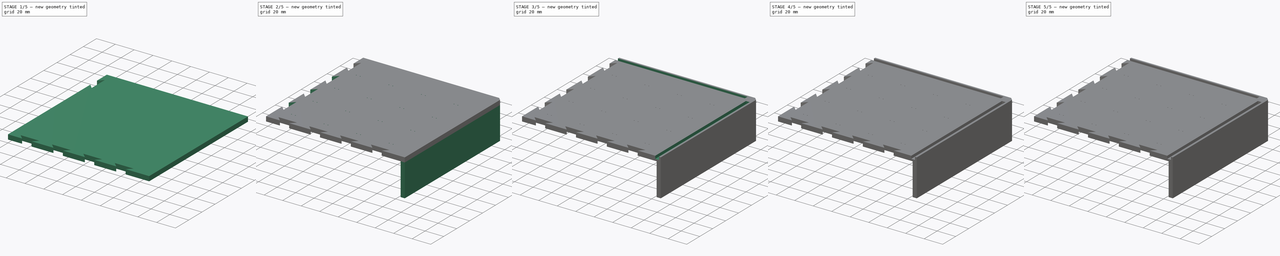
[diagram: build sequence overview — one tinted view per stage of 5, left to right]
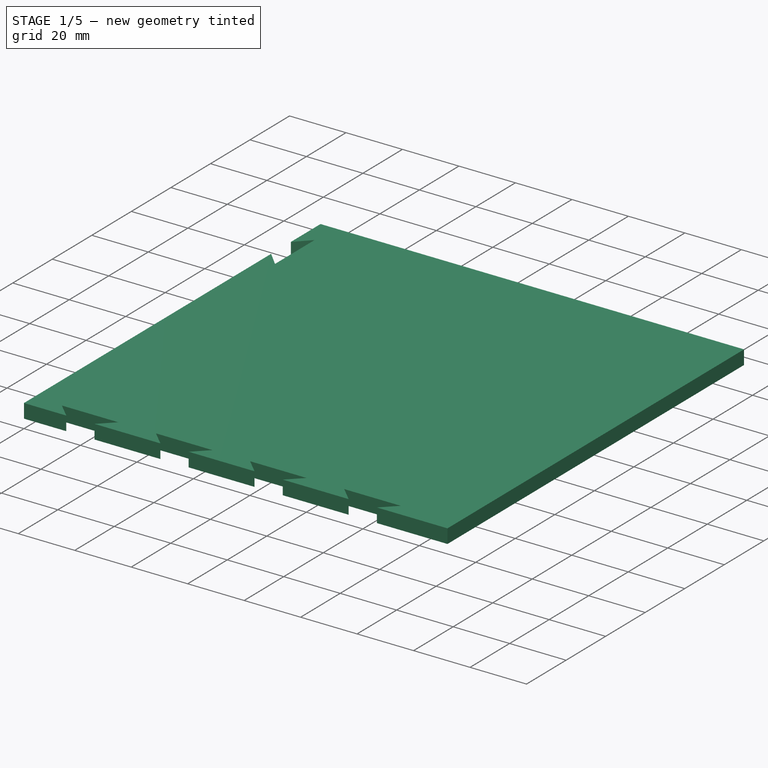
[diagram: stage 1 of 5 — iso view after this stage's code; geometry added in this stage tinted green]
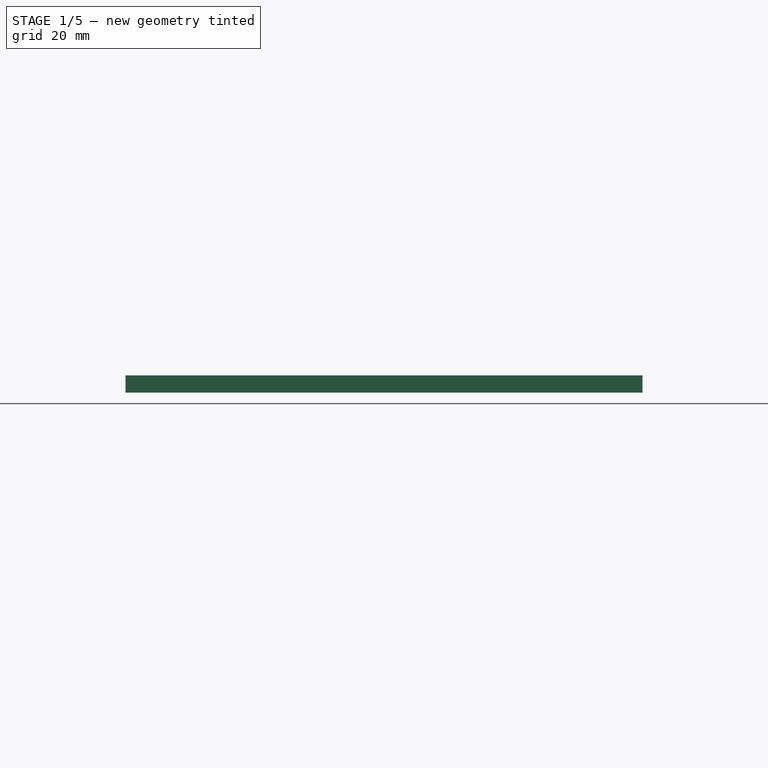
[diagram: stage 1 of 5 — front view after this stage's code; geometry added in this stage tinted green]
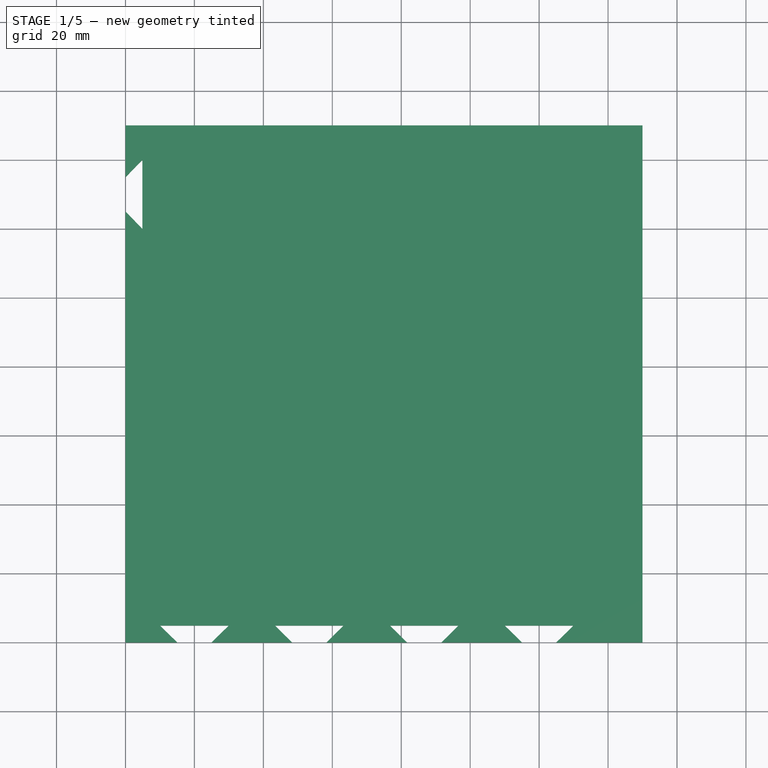
[diagram: stage 1 of 5 — top view after this stage's code; geometry added in this stage tinted green]
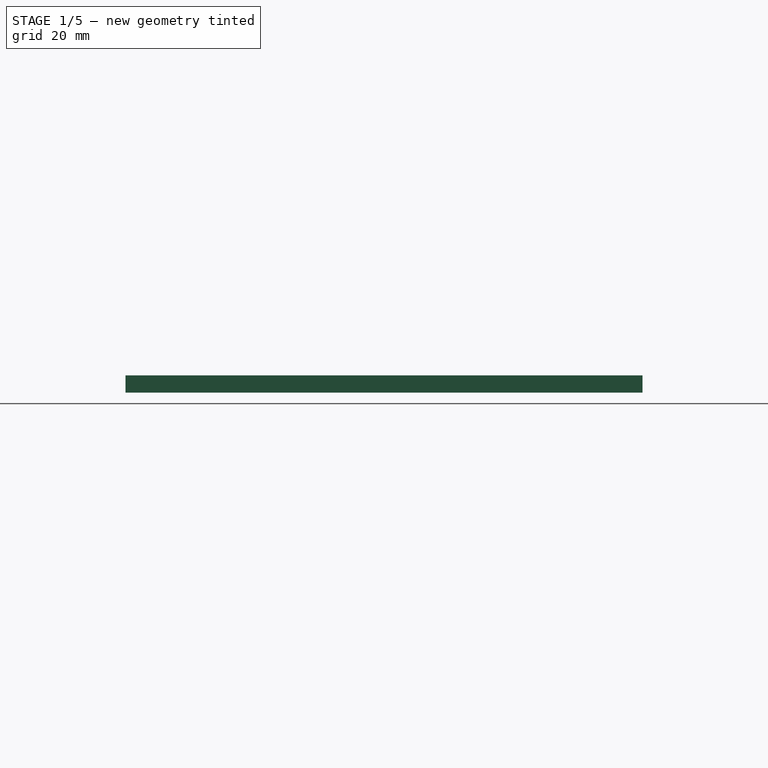
[diagram: stage 1 of 5 — right view after this stage's code; geometry added in this stage tinted green]
FCSTD DOCUMENT  (FreeCAD 0.19R24267 +148 (Git))
Label: Desni_gornji_dio_Led_cube
License: All rights reserved
LicenseURL: http://en.wikipedia.org/wiki/All_rights_reserved
objects: Sketcher::SketchObject×14, PartDesign::Pocket×8, PartDesign::Pad×5, PartDesign::LinearPattern×5, PartDesign::Chamfer×3, PartDesign::Hole×1, PartDesign::Body×1
note: 54 computed .brp shape members not serialized (recipe doc carries the construction recipe); baked Part::Feature solids carry a one-line shape summary decoded from their .brp

FEATURE [Sketcher::SketchObject] Sketch
  FullyConstrained = true
  MapMode = 5
  Support = -> [XY_Plane]
  sketch-geometry (4):
    g0: LineSegment StartX=0 StartY=0 StartZ=0 EndX=150 EndY=0 EndZ=0
    g1: LineSegment StartX=150 StartY=0 StartZ=0 EndX=150 EndY=150 EndZ=0
    g2: LineSegment StartX=150 StartY=150 StartZ=0 EndX=0 EndY=150 EndZ=0
    g3: LineSegment StartX=0 StartY=150 StartZ=0 EndX=0 EndY=0 EndZ=0
  constraints (11):
    c: Coincident(g0,g1)
    c: Coincident(g1,g2)
    c: Coincident(g2,g3)
    c: Coincident(g3,g0)
    c: Horizontal(g0)
    c: Horizontal(g2)
    c: Vertical(g1)
    c: Vertical(g3)
    c: Coincident(g0,g-1)
    c: DistanceX(g2,g2) = 150
    c: DistanceY(g1,g1) = 150
FEATURE [PartDesign::Pad] Pad
  Direction = (1,1,1)
  Length = 5
  Length2 = 100
  Profile = -> Sketch
  Type = 0
FEATURE [Sketcher::SketchObject] Sketch001
  FullyConstrained = true
  MapMode = 5
  Placement = pos=(0,0,5) rot=(0,0,1;0rad)
  Support = -> [Pad]
  sketch-geometry (6):
    g0: LineSegment StartX=0 StartY=0 StartZ=0 EndX=0 EndY=150 EndZ=0
    g1: LineSegment StartX=0 StartY=0 StartZ=0 EndX=15 EndY=0 EndZ=0
    g2: LineSegment StartX=15 StartY=0 StartZ=0 EndX=25 EndY=0 EndZ=0
    g3: LineSegment StartX=15 StartY=0 StartZ=0 EndX=10 EndY=4.89898 EndZ=0
    g4: LineSegment StartX=10 StartY=4.89898 StartZ=0 EndX=30 EndY=4.89898 EndZ=0
    g5: LineSegment StartX=30 StartY=4.89898 StartZ=0 EndX=25 EndY=0 EndZ=0
  constraints (17):
    c: Coincident(g0,g-1)
    c: PointOnObject(g0,g-2)
    c: DistanceY(g0,g0) = 150
    c: Coincident(g1,g-1)
    c: PointOnObject(g1,g-1)
    c: DistanceX(g1,g1) = 15
    c: Coincident(g2,g1)
    c: PointOnObject(g2,g-1)
    c: DistanceX(g2,g2) = 10
    c: Coincident(g3,g2)
    c: Distance(g3) = 7
    c: Coincident(g4,g3)
    c: Horizontal(g4)
    c: DistanceX(g4,g4) = 20
    c: Coincident(g5,g4)
    c: Coincident(g5,g2)
    c: Distance(g5) = 7
FEATURE [PartDesign::Pocket] Pocket
  BaseFeature = -> Pad
  Length = 8
  Length2 = 100
  Profile = -> Sketch001
  Type = 0
FEATURE [PartDesign::LinearPattern] LinearPattern
  BaseFeature = -> Pocket
  Direction = -> Sketch001 [H_Axis]
  Length = 100
  Occurrences = 4
  Originals = -> [Pocket]
FEATURE [Sketcher::SketchObject] Sketch002
  FullyConstrained = true
  MapMode = 5
  Placement = pos=(0,0,5) rot=(0,0,1;0rad)
  Support = -> [LinearPattern]
  sketch-geometry (7):
    g0: LineSegment StartX=150 StartY=0 StartZ=0 EndX=150 EndY=150 EndZ=0
    g1: LineSegment StartX=150 StartY=150 StartZ=0 EndX=0 EndY=150 EndZ=0
    g2: LineSegment StartX=0 StartY=150 StartZ=0 EndX=0 EndY=135 EndZ=0
    g3: LineSegment StartX=0 StartY=135 StartZ=0 EndX=0 EndY=125 EndZ=0
    g4: LineSegment StartX=0 StartY=135 StartZ=0 EndX=4.89898 EndY=140 EndZ=0
    g5: LineSegment StartX=4.89898 StartY=140 StartZ=0 EndX=4.89898 EndY=120 EndZ=0
    g6: LineSegment StartX=0 StartY=125 StartZ=0 EndX=4.89898 EndY=120 EndZ=0
  constraints (21):
    c: PointOnObject(g0,g-1)
    c: DistanceX(g-1,g0) = 150
    c: Vertical(g0)
    c: DistanceY(g0,g0) = 150
    c: Coincident(g1,g0)
    c: PointOnObject(g1,g-2)
    c: Horizontal(g1)
    c: Coincident(g2,g1)
    c: PointOnObject(g2,g-2)
    c: DistanceY(g2,g2) = 15
    c: Coincident(g3,g2)
    c: PointOnObject(g3,g-2)
    c: DistanceY(g3,g3) = 10
    c: Coincident(g4,g3)
    c: Distance(g4) = 7
    c: Coincident(g5,g4)
    c: Vertical(g5)
    c: DistanceY(g5,g5) = 20
    c: Coincident(g6,g3)
    c: Coincident(g6,g5)
    c: Distance(g6) = 7
FEATURE [PartDesign::Pocket] Pocket001
  BaseFeature = -> LinearPattern
  Length = 5
  Length2 = 100
  Profile = -> Sketch002
  Type = 0
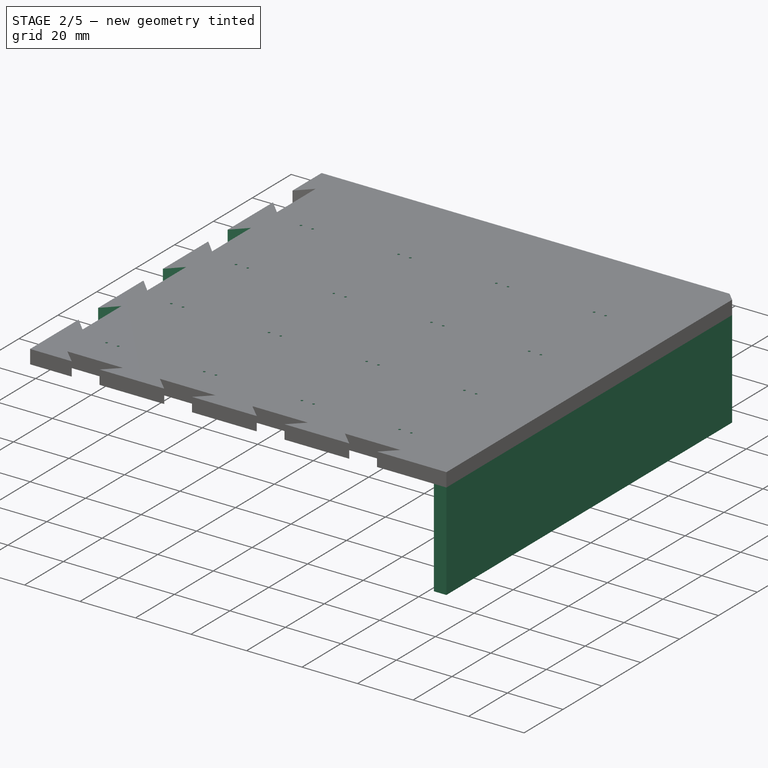
[diagram: stage 2 of 5 — iso view after this stage's code; geometry added in this stage tinted green]
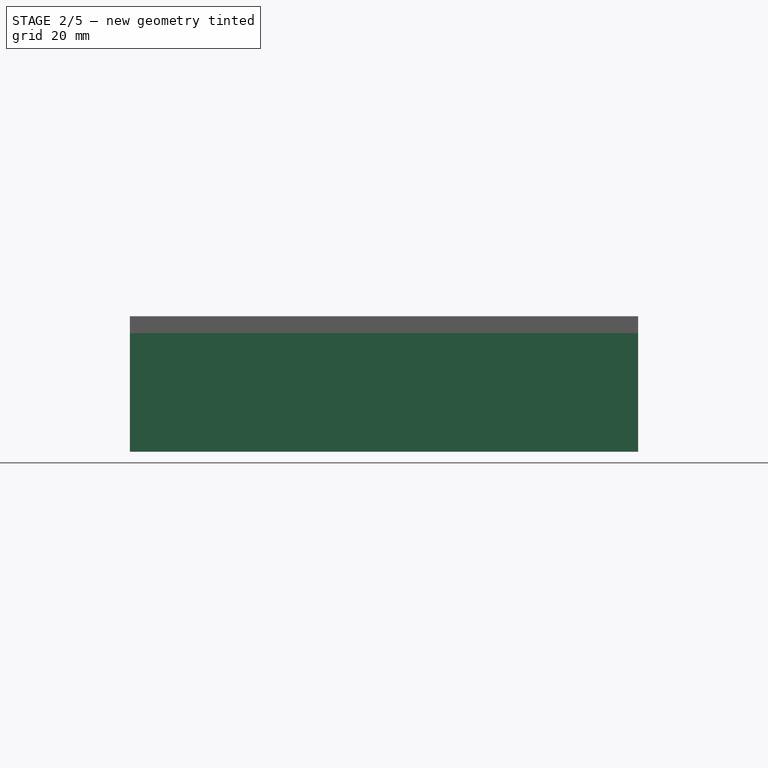
[diagram: stage 2 of 5 — front view after this stage's code; geometry added in this stage tinted green]
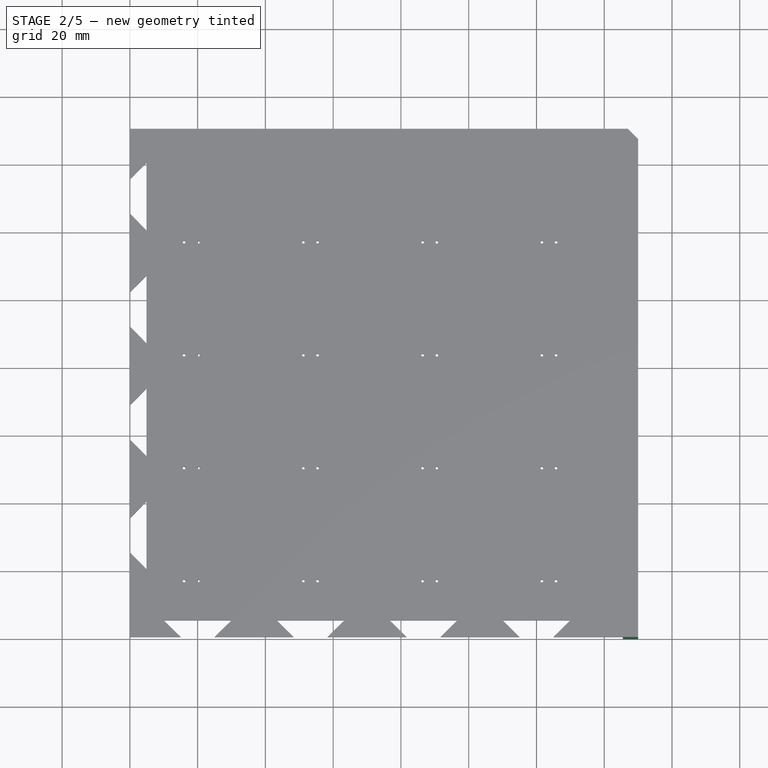
[diagram: stage 2 of 5 — top view after this stage's code; geometry added in this stage tinted green]
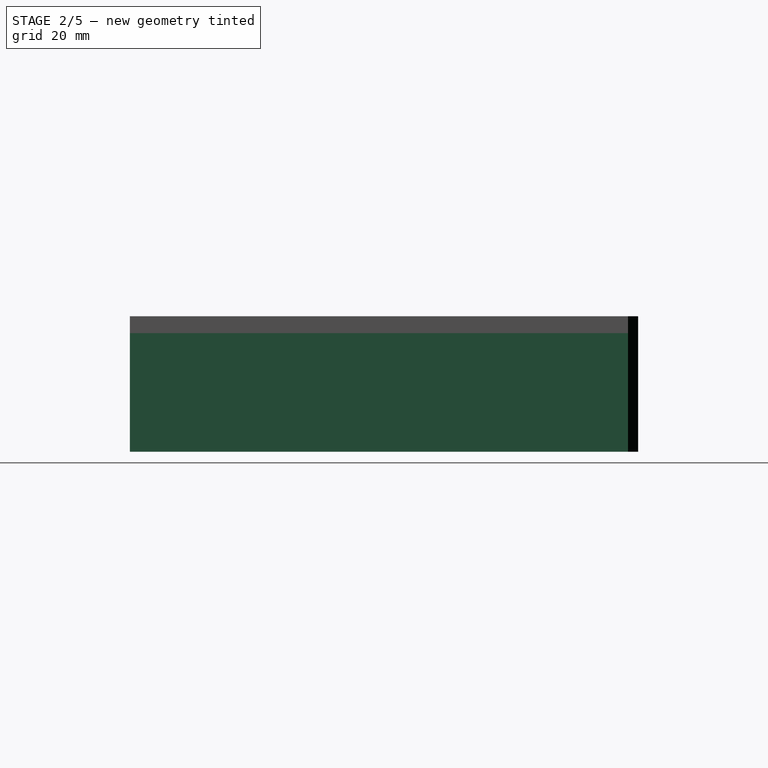
[diagram: stage 2 of 5 — right view after this stage's code; geometry added in this stage tinted green]
FEATURE [PartDesign::LinearPattern] LinearPattern001
  BaseFeature = -> Pocket001
  Direction = -> Y_Axis
  Length = 100
  Occurrences = 4
  Originals = -> [Pocket001]
  Reversed = true
FEATURE [Sketcher::SketchObject] Sketch003
  FullyConstrained = true
  MapMode = 5
  Placement = pos=(0,0,0) rot=(1,0,0;3.14159rad)
  Support = -> [LinearPattern001]
  sketch-geometry (9):
    g0: LineSegment StartX=0 StartY=0 StartZ=0 EndX=150 EndY=0 EndZ=0
    g1: LineSegment StartX=150 StartY=0 StartZ=0 EndX=150 EndY=-150 EndZ=0
    g2: LineSegment StartX=150 StartY=-150 StartZ=0 EndX=0 EndY=-150 EndZ=0
    g3: LineSegment StartX=150 StartY=0 StartZ=0 EndX=145.5 EndY=0 EndZ=0
    g4: LineSegment StartX=145.5 StartY=0 StartZ=0 EndX=145.5 EndY=-130 EndZ=0
    g5: LineSegment StartX=0 StartY=-150 StartZ=0 EndX=0 EndY=-145.5 EndZ=0
    g6: LineSegment StartX=0 StartY=-145.5 StartZ=0 EndX=130 EndY=-145.5 EndZ=0
    g7: LineSegment StartX=130 StartY=-145.5 StartZ=0 EndX=130 EndY=-130 EndZ=0
    g8: LineSegment StartX=145.5 StartY=-130 StartZ=0 EndX=130 EndY=-130 EndZ=0
  constraints (26):
    c: Coincident(g0,g-1)
    c: PointOnObject(g0,g-1)
    c: DistanceX(g0,g0) = 150
    c: Coincident(g1,g0)
    c: Vertical(g1)
    c: DistanceY(g1,g1) = 150
    c: Coincident(g2,g1)
    c: PointOnObject(g2,g-2)
    c: Horizontal(g2)
    c: Coincident(g3,g1)
    c: PointOnObject(g3,g0)
    c: DistanceX(g3,g3) = 4.5
    c: Coincident(g4,g3)
    c: Vertical(g4)
    c: DistanceY(g4,g4) = 130
    c: Coincident(g5,g2)
    c: PointOnObject(g5,g-2)
    c: DistanceY(g5,g5) = 4.5
    c: Coincident(g6,g5)
    c: Horizontal(g6)
    c: DistanceX(g6,g6) = 130
    c: Coincident(g7,g6)
    c: Vertical(g7)
    c: DistanceY(g7,g7) = 15.5
    c: Coincident(g8,g4)
    c: Coincident(g8,g7)
FEATURE [PartDesign::Pad] Pad001
  BaseFeature = -> LinearPattern001
  Direction = (1,1,1)
  Length = 35
  Length2 = 100
  Profile = -> Sketch003
  Type = 0
FEATURE [Sketcher::SketchObject] Sketch004
  FullyConstrained = true
  MapMode = 5
  Placement = pos=(0,0,5) rot=(0,0,1;0rad)
  Support = -> [Pad001]
  sketch-geometry (17):
    g0: LineSegment StartX=0 StartY=0 StartZ=0 EndX=0 EndY=16.5 EndZ=0
    g1: LineSegment StartX=0 StartY=16.5 StartZ=0 EndX=16 EndY=16.5 EndZ=0
    g2: Circle CenterX=16 CenterY=16.5 CenterZ=0 NormalX=0 NormalY=0 NormalZ=1 AngleXU=0 Radius=0.6
    g3: LineSegment StartX=16 StartY=16.5 StartZ=0 EndX=20.2 EndY=16.5 EndZ=0
    g4: Circle CenterX=20.2 CenterY=16.5 CenterZ=0 NormalX=0 NormalY=0 NormalZ=1 AngleXU=0 Radius=0.6
    g5: LineSegment StartX=20.2 StartY=16.5 StartZ=0 EndX=51.2 EndY=16.5 EndZ=0
    g6: Circle CenterX=51.2 CenterY=16.5 CenterZ=0 NormalX=0 NormalY=0 NormalZ=1 AngleXU=0 Radius=0.6
    g7: LineSegment StartX=51.2 StartY=16.5 StartZ=0 EndX=55.4 EndY=16.5 EndZ=0
    g8: Circle CenterX=55.4 CenterY=16.5 CenterZ=0 NormalX=0 NormalY=0 NormalZ=1 AngleXU=0 Radius=0.6
    g9: LineSegment StartX=55.4 StartY=16.5 StartZ=0 EndX=86.4 EndY=16.5 EndZ=0
    g10: Circle CenterX=86.4 CenterY=16.5 CenterZ=0 NormalX=0 NormalY=0 NormalZ=1 AngleXU=0 Radius=0.6
    g11: LineSegment StartX=86.4 StartY=16.5 StartZ=0 EndX=90.6 EndY=16.5 EndZ=0
    g12: Circle CenterX=90.6 CenterY=16.5 CenterZ=0 NormalX=0 NormalY=0 NormalZ=1 AngleXU=0 Radius=0.6
    g13: LineSegment StartX=90.6 StartY=16.5 StartZ=0 EndX=121.6 EndY=16.5 EndZ=0
    g14: Circle CenterX=121.6 CenterY=16.5 CenterZ=0 NormalX=0 NormalY=0 NormalZ=1 AngleXU=0 Radius=0.6
    g15: LineSegment StartX=121.6 StartY=16.5 StartZ=0 EndX=125.8 EndY=16.5 EndZ=0
    g16: Circle CenterX=125.8 CenterY=16.5 CenterZ=0 NormalX=0 NormalY=0 NormalZ=1 AngleXU=0 Radius=0.6
  constraints (43):
    c: Coincident(g0,g-1)
    c: PointOnObject(g0,g-2)
    c: Coincident(g1,g0)
    c: Horizontal(g1)
    c: DistanceX(g1,g1) = 16
    c: Coincident(g2,g1)
    c: Radius(g2) = 0.6
    c: Coincident(g3,g2)
    c: Horizontal(g3)
    c: DistanceX(g3,g3) = 4.2
    c: Coincident(g4,g3)
    c: Radius(g4) = 0.6
    c: Coincident(g5,g4)
    c: Horizontal(g5)
    c: DistanceX(g5,g5) = 31
    c: Coincident(g6,g5)
    c: Radius(g6) = 0.6
    c: Coincident(g7,g6)
    c: Horizontal(g7)
    c: DistanceX(g7,g7) = 4.2
    c: Coincident(g8,g7)
    c: Radius(g8) = 0.6
    c: Coincident(g9,g8)
    c: Horizontal(g9)
    c: DistanceX(g9,g9) = 31
    c: Coincident(g10,g9)
    c: Radius(g10) = 0.6
    c: Coincident(g11,g10)
    c: Horizontal(g11)
    c: DistanceX(g11,g11) = 4.2
    c: Coincident(g12,g11)
    c: Radius(g12) = 0.6
    c: Coincident(g13,g12)
    c: Horizontal(g13)
    c: DistanceX(g13,g13) = 31
    c: Coincident(g14,g13)
    c: Radius(g14) = 0.6
    c: Coincident(g15,g14)
    c: Horizontal(g15)
    c: DistanceX(g15,g15) = 4.2
    c: Coincident(g16,g15)
    c: Radius(g16) = 0.6
    c: DistanceY(g0,g0) = 16.5
FEATURE [PartDesign::Hole] Hole
  BaseFeature = -> Pad001
  Depth = 25
  DepthType = 0
  Diameter = 0.8
  DrillForDepth = false
  DrillPoint = 1
  DrillPointAngle = 118
  HoleCutCountersinkAngle = 90
  HoleCutCustomValues = false
  HoleCutDepth = 0
  HoleCutDiameter = 6.1
  HoleCutType = 0
  ModelActualThread = false
  Profile = -> Sketch004
  Tapered = false
  TaperedAngle = 90
  ThreadAngle = 0
  ThreadClass = 0
  ThreadCutOffInner = 0
  ThreadCutOffOuter = 0
  ThreadDirection = 0
  ThreadFit = 0
  ThreadPitch = 0
  ThreadSize = 0
  ThreadType = 0
  Threaded = false
FEATURE [PartDesign::LinearPattern] LinearPattern002
  BaseFeature = -> Hole
  Direction = -> Y_Axis
  Length = 100
  Occurrences = 4
  Originals = -> [Hole]
FEATURE [PartDesign::Chamfer] Chamfer
  Angle = 45
  Base = -> LinearPattern002 [Edge217]
  BaseFeature = -> LinearPattern002
  ChamferType = 0
  FlipDirection = false
  Size = 3
  Size2 = 1
  SupportTransform = false
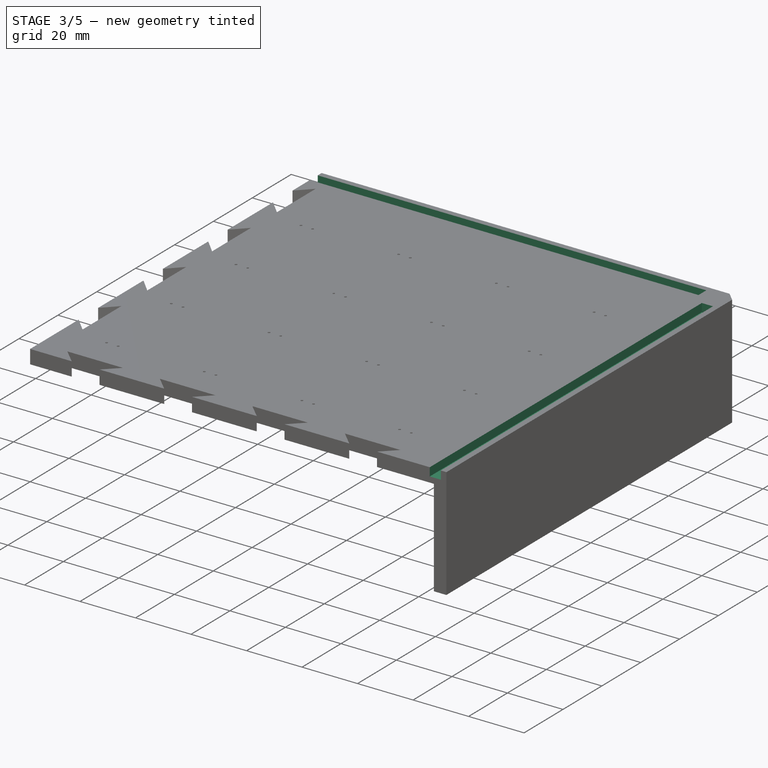
[diagram: stage 3 of 5 — iso view after this stage's code; geometry added in this stage tinted green]
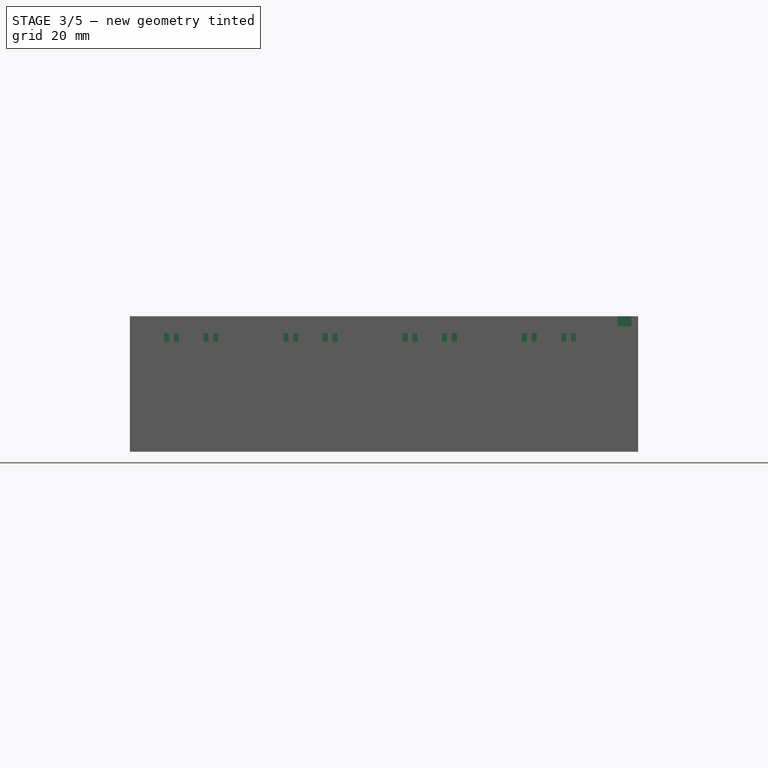
[diagram: stage 3 of 5 — front view after this stage's code; geometry added in this stage tinted green]
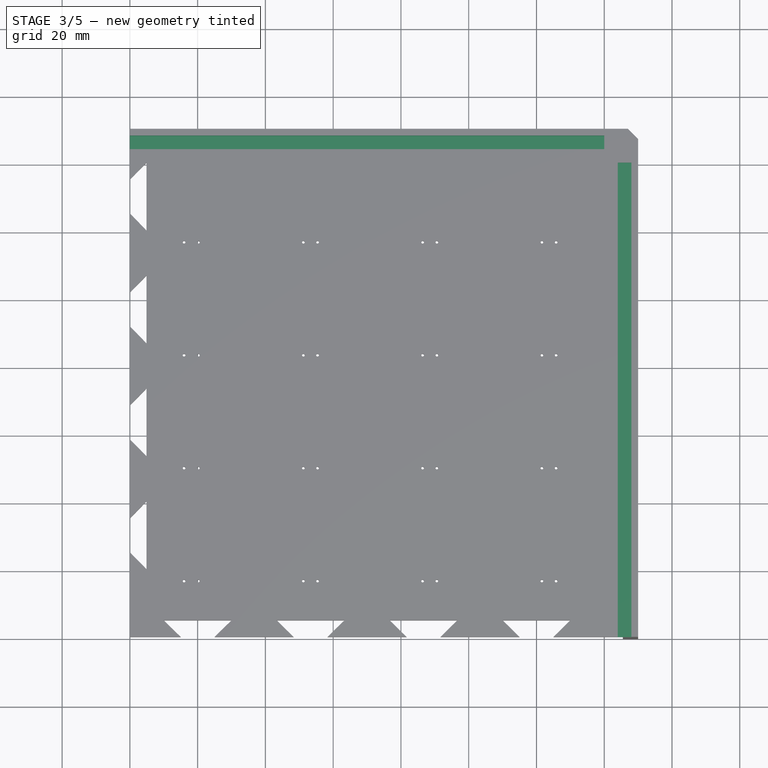
[diagram: stage 3 of 5 — top view after this stage's code; geometry added in this stage tinted green]
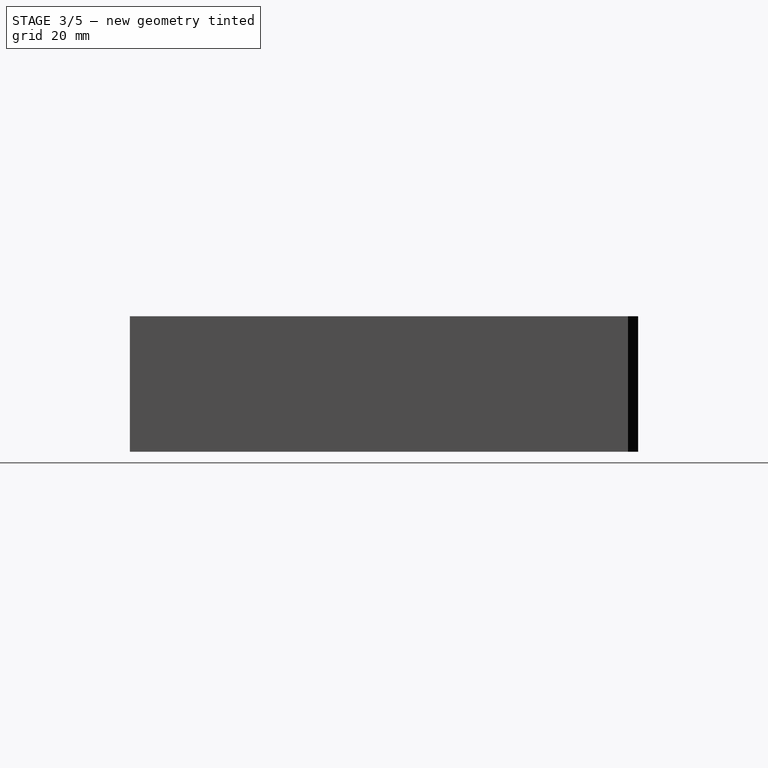
[diagram: stage 3 of 5 — right view after this stage's code; geometry added in this stage tinted green]
FEATURE [Sketcher::SketchObject] Sketch005
  FullyConstrained = true
  MapMode = 5
  Placement = pos=(0,0,5) rot=(0,0,1;0rad)
  Support = -> [Chamfer]
  sketch-geometry (8):
    g0: LineSegment StartX=0 StartY=0 StartZ=0 EndX=150 EndY=0 EndZ=0
    g1: LineSegment StartX=150 StartY=0 StartZ=0 EndX=150 EndY=150 EndZ=0
    g2: LineSegment StartX=150 StartY=150 StartZ=0 EndX=0 EndY=150 EndZ=0
    g3: LineSegment StartX=0 StartY=150 StartZ=0 EndX=0 EndY=148 EndZ=0
    g4: LineSegment StartX=0 StartY=148 StartZ=0 EndX=0 EndY=144 EndZ=0
    g5: LineSegment StartX=0 StartY=148 StartZ=0 EndX=140 EndY=148 EndZ=0
    g6: LineSegment StartX=140 StartY=148 StartZ=0 EndX=140 EndY=144 EndZ=0
    g7: LineSegment StartX=140 StartY=144 StartZ=0 EndX=0 EndY=144 EndZ=0
  constraints (24):
    c: Coincident(g0,g-1)
    c: PointOnObject(g0,g-1)
    c: DistanceX(g0,g0) = 150
    c: Coincident(g1,g0)
    c: Vertical(g1)
    c: DistanceY(g1,g1) = 150
    c: Coincident(g2,g1)
    c: Horizontal(g2)
    c: DistanceX(g2,g2) = 150
    c: Coincident(g3,g2)
    c: PointOnObject(g3,g-2)
    c: DistanceY(g3,g3) = 2
    c: Coincident(g4,g3)
    c: PointOnObject(g4,g-2)
    c: DistanceY(g4,g4) = 4
    c: Coincident(g5,g4)
    c: Horizontal(g5)
    c: DistanceX(g5,g5) = 140
    c: Coincident(g6,g5)
    c: Vertical(g6)
    c: DistanceY(g6,g6) = 4
    c: Coincident(g7,g6)
    c: Horizontal(g7)
    c: DistanceX(g7,g7) = 140
FEATURE [PartDesign::Pocket] Pocket002
  BaseFeature = -> Chamfer
  Length = 4
  Length2 = 100
  Profile = -> Sketch005
  Type = 0
FEATURE [Sketcher::SketchObject] Sketch006
  FullyConstrained = true
  MapMode = 5
  Placement = pos=(0,0,5) rot=(0,0,1;0rad)
  Support = -> [Pocket002]
  sketch-geometry (8):
    g0: LineSegment StartX=0 StartY=0 StartZ=0 EndX=0 EndY=150 EndZ=0
    g1: LineSegment StartX=0 StartY=150 StartZ=0 EndX=150 EndY=150 EndZ=0
    g2: LineSegment StartX=150 StartY=150 StartZ=0 EndX=150 EndY=0 EndZ=0
    g3: LineSegment StartX=150 StartY=0 StartZ=0 EndX=148 EndY=0 EndZ=0
    g4: LineSegment StartX=148 StartY=0 StartZ=0 EndX=144 EndY=0 EndZ=0
    g5: LineSegment StartX=148 StartY=0 StartZ=0 EndX=148 EndY=140 EndZ=0
    g6: LineSegment StartX=148 StartY=140 StartZ=0 EndX=144 EndY=140 EndZ=0
    g7: LineSegment StartX=144 StartY=140 StartZ=0 EndX=144 EndY=0 EndZ=0
  constraints (24):
    c: Coincident(g0,g-1)
    c: PointOnObject(g0,g-2)
    c: DistanceY(g0,g0) = 150
    c: Coincident(g1,g0)
    c: Horizontal(g1)
    c: DistanceX(g1,g1) = 150
    c: Coincident(g2,g1)
    c: Vertical(g2)
    c: DistanceY(g2,g2) = 150
    c: Coincident(g3,g2)
    c: PointOnObject(g3,g-1)
    c: DistanceX(g3,g3) = 2
    c: Coincident(g4,g3)
    c: PointOnObject(g4,g-1)
    c: DistanceX(g4,g4) = 4
    c: Coincident(g5,g4)
    c: Vertical(g5)
    c: DistanceY(g5,g5) = 140
    c: Coincident(g6,g5)
    c: Horizontal(g6)
    c: DistanceX(g6,g6) = 4
    c: Coincident(g7,g6)
    c: Vertical(g7)
    c: DistanceY(g7,g7) = 140
FEATURE [PartDesign::Pocket] Pocket003
  BaseFeature = -> Pocket002
  Length = 3
  Length2 = 100
  Profile = -> Sketch006
  Type = 0
FEATURE [Sketcher::SketchObject] Sketch007
  FullyConstrained = true
  MapMode = 5
  Placement = pos=(0,0,-35) rot=(1,0,0;3.14159rad)
  Support = -> [Pocket003]
  sketch-geometry (8):
    g0: LineSegment StartX=0 StartY=0 StartZ=0 EndX=150 EndY=0 EndZ=0
    g1: LineSegment StartX=150 StartY=0 StartZ=0 EndX=150 EndY=-150 EndZ=0
    g2: LineSegment StartX=150 StartY=-150 StartZ=0 EndX=145 EndY=-150 EndZ=0
    g3: LineSegment StartX=145 StartY=-150 StartZ=0 EndX=145 EndY=-145 EndZ=0
    g4: LineSegment StartX=145 StartY=-145 StartZ=0 EndX=132 EndY=-145 EndZ=0
    g5: LineSegment StartX=132 StartY=-145 StartZ=0 EndX=132 EndY=-132 EndZ=0
    g6: LineSegment StartX=132 StartY=-132 StartZ=0 EndX=145 EndY=-132 EndZ=0
    g7: LineSegment StartX=145 StartY=-132 StartZ=0 EndX=145 EndY=-145 EndZ=0
  constraints (23):
    c: Coincident(g0,g-1)
    c: PointOnObject(g0,g-1)
    c: DistanceX(g0,g0) = 150
    c: Coincident(g1,g0)
    c: Vertical(g1)
    c: DistanceY(g1,g1) = 150
    c: Coincident(g2,g1)
    c: Horizontal(g2)
    c: DistanceX(g2,g2) = 5
    c: Coincident(g3,g2)
    c: Vertical(g3)
    c: DistanceY(g3,g3) = 5
    c: Coincident(g4,g3)
    c: Horizontal(g4)
    c: DistanceX(g4,g4) = 13
    c: Coincident(g5,g4)
    c: Vertical(g5)
    c: DistanceY(g5,g5) = 13
    c: Coincident(g6,g5)
    c: Horizontal(g6)
    c: DistanceX(g6,g6) = 13
    c: Coincident(g7,g6)
    c: Coincident(g7,g4)
FEATURE [PartDesign::Pocket] Pocket004
  BaseFeature = -> Pocket003
  Length = 3
  Length2 = 100
  Profile = -> Sketch007
  Type = 0
FEATURE [Sketcher::SketchObject] Sketch008
  FullyConstrained = true
  MapMode = 5
  Placement = pos=(0,0,0) rot=(1,0,0;3.14159rad)
  Support = -> [Pocket004]
  sketch-geometry (97):
    g0: LineSegment StartX=0 StartY=0 StartZ=0 EndX=16 EndY=0 EndZ=0
    g1: LineSegment StartX=16 StartY=0 StartZ=0 EndX=16 EndY=-16.2 EndZ=0
    g2: LineSegment StartX=16 StartY=-16.2 StartZ=0 EndX=16 EndY=-18.7 EndZ=0
    g3: LineSegment StartX=16 StartY=-18.7 StartZ=0 EndX=14.5 EndY=-18.7 EndZ=0
    g4: LineSegment StartX=16 StartY=-16.2 StartZ=0 EndX=20.2 EndY=-16.2 EndZ=0
    g5: LineSegment StartX=20.2 StartY=-16.2 StartZ=0 EndX=20.2 EndY=-18.7 EndZ=0
    g6: LineSegment StartX=20.2 StartY=-18.7 StartZ=0 EndX=21.7 EndY=-18.7 EndZ=0
    g7: LineSegment StartX=21.7 StartY=-18.7 StartZ=0 EndX=23.2 EndY=-18.7 EndZ=0
    g8: LineSegment StartX=23.2 StartY=-18.7 StartZ=0 EndX=23.2 EndY=-43.7 EndZ=0
    g9: LineSegment StartX=23.2 StartY=-43.7 StartZ=0 EndX=21.7 EndY=-43.7 EndZ=0
    g10: LineSegment StartX=21.7 StartY=-43.7 StartZ=0 EndX=21.7 EndY=-18.7 EndZ=0
    g11: LineSegment StartX=23.2 StartY=-18.7 StartZ=0 EndX=24.6 EndY=-18.7 EndZ=0
    g12: LineSegment StartX=24.6 StartY=-18.7 StartZ=0 EndX=26.1 EndY=-18.7 EndZ=0
    g13: LineSegment StartX=26.1 StartY=-18.7 StartZ=0 EndX=26.1 EndY=-43.7 EndZ=0
    g14: LineSegment StartX=26.1 StartY=-43.7 StartZ=0 EndX=24.6 EndY=-43.7 EndZ=0
    g15: LineSegment StartX=24.6 StartY=-43.7 StartZ=0 EndX=24.6 EndY=-18.7 EndZ=0
    g16: LineSegment StartX=14.5 StartY=-18.7 StartZ=0 EndX=13 EndY=-18.7 EndZ=0
    g17: LineSegment StartX=13 StartY=-18.7 StartZ=0 EndX=13 EndY=-43.7 EndZ=0
    g18: LineSegment StartX=13 StartY=-43.7 StartZ=0 EndX=14.5 EndY=-43.7 EndZ=0
    g19: LineSegment StartX=14.5 StartY=-43.7 StartZ=0 EndX=14.5 EndY=-18.7 EndZ=0
    g20: LineSegment StartX=13 StartY=-18.7 StartZ=0 EndX=11.6 EndY=-18.7 EndZ=0
    g21: LineSegment StartX=20.2 StartY=-16.2 StartZ=0 EndX=51.2 EndY=-16.2 EndZ=0
    g22: LineSegment StartX=11.6 StartY=-18.7 StartZ=0 EndX=10.1 EndY=-18.7 EndZ=0
    g23: LineSegment StartX=10.1 StartY=-18.7 StartZ=0 EndX=10.1 EndY=-43.7 EndZ=0
    g24: LineSegment StartX=10.1 StartY=-43.7 StartZ=0 EndX=11.6 EndY=-43.7 EndZ=0
    g25: LineSegment StartX=11.6 StartY=-43.7 StartZ=0 EndX=11.6 EndY=-18.7 EndZ=0
    g26: LineSegment StartX=51.2 StartY=-16.2 StartZ=0 EndX=51.2 EndY=-18.7 EndZ=0
    g27: LineSegment StartX=51.2 StartY=-18.7 StartZ=0 EndX=49.7 EndY=-18.7 EndZ=0
    g28: LineSegment StartX=51.2 StartY=-16.2 StartZ=0 EndX=55.4 EndY=-16.2 EndZ=0
    g29: LineSegment StartX=55.4 StartY=-16.2 StartZ=0 EndX=55.4 EndY=-18.7 EndZ=0
    g30: LineSegment StartX=55.4 StartY=-18.7 StartZ=0 EndX=56.9 EndY=-18.7 EndZ=0
    g31: LineSegment StartX=55.4 StartY=-16.2 StartZ=0 EndX=86.4 EndY=-16.2 EndZ=0
    g32: LineSegment StartX=49.7 StartY=-18.7 StartZ=0 EndX=48.2 EndY=-18.7 EndZ=0
    g33: LineSegment StartX=48.2 StartY=-18.7 StartZ=0 EndX=48.2 EndY=-43.7 EndZ=0
    g34: LineSegment StartX=48.2 StartY=-43.7 StartZ=0 EndX=49.7 EndY=-43.7 EndZ=0
    g35: LineSegment StartX=49.7 StartY=-43.7 StartZ=0 EndX=49.7 EndY=-18.7 EndZ=0
    g36: LineSegment StartX=56.9 StartY=-18.7 StartZ=0 EndX=58.4 EndY=-18.7 EndZ=0
    g37: LineSegment StartX=58.4 StartY=-18.7 StartZ=0 EndX=58.4 EndY=-43.7 EndZ=0
    g38: LineSegment StartX=58.4 StartY=-43.7 StartZ=0 EndX=56.9 EndY=-43.7 EndZ=0
    g39: LineSegment StartX=56.9 StartY=-43.7 StartZ=0 EndX=56.9 EndY=-18.7 EndZ=0
    g40: LineSegment StartX=48.2 StartY=-18.7 StartZ=0 EndX=46.8 EndY=-18.7 EndZ=0
    g41: LineSegment StartX=58.4 StartY=-18.7 StartZ=0 EndX=59.8 EndY=-18.7 EndZ=0
    g42: LineSegment StartX=46.8 StartY=-18.7 StartZ=0 EndX=45.3 EndY=-18.7 EndZ=0
    g43: LineSegment StartX=45.3 StartY=-18.7 StartZ=0 EndX=45.3 EndY=-43.7 EndZ=0
    g44: LineSegment StartX=45.3 StartY=-43.7 StartZ=0 EndX=46.8 EndY=-43.7 EndZ=0
    g45: LineSegment StartX=46.8 StartY=-43.7 StartZ=0 EndX=46.8 EndY=-18.7 EndZ=0
    g46: LineSegment StartX=59.8 StartY=-18.7 StartZ=0 EndX=61.3 EndY=-18.7 EndZ=0
    g47: LineSegment StartX=61.3 StartY=-18.7 StartZ=0 EndX=61.3 EndY=-43.7 EndZ=0
    g48: LineSegment StartX=61.3 StartY=-43.7 StartZ=0 EndX=59.8 EndY=-43.7 EndZ=0
    g49: LineSegment StartX=59.8 StartY=-43.7 StartZ=0 EndX=59.8 EndY=-18.7 EndZ=0
    g50: LineSegment StartX=86.4 StartY=-16.2 StartZ=0 EndX=90.6 EndY=-16.2 EndZ=0
    g51: LineSegment StartX=86.4 StartY=-16.2 StartZ=0 EndX=86.4 EndY=-18.7 EndZ=0
    g52: LineSegment StartX=86.4 StartY=-18.7 StartZ=0 EndX=84.9 EndY=-18.7 EndZ=0
    g53: LineSegment StartX=90.6 StartY=-16.2 StartZ=0 EndX=90.6 EndY=-18.7 EndZ=0
    g54: LineSegment StartX=90.6 StartY=-18.7 StartZ=0 EndX=92.1 EndY=-18.7 EndZ=0
    g55: LineSegment StartX=90.6 StartY=-16.2 StartZ=0 EndX=121.6 EndY=-16.2 EndZ=0
    g56: LineSegment StartX=84.9 StartY=-18.7 StartZ=0 EndX=83.4 EndY=-18.7 EndZ=0
    g57: LineSegment StartX=83.4 StartY=-18.7 StartZ=0 EndX=83.4 EndY=-43.7 EndZ=0
    g58: LineSegment StartX=83.4 StartY=-43.7 StartZ=0 EndX=84.9 EndY=-43.7 EndZ=0
    g59: LineSegment StartX=84.9 StartY=-43.7 StartZ=0 EndX=84.9 EndY=-18.7 EndZ=0
    g60: LineSegment StartX=92.1 StartY=-18.7 StartZ=0 EndX=93.6 EndY=-18.7 EndZ=0
    g61: LineSegment StartX=93.6 StartY=-18.7 StartZ=0 EndX=93.6 EndY=-43.7 EndZ=0
    g62: LineSegment StartX=93.6 StartY=-43.7 StartZ=0 EndX=92.1 EndY=-43.7 EndZ=0
    g63: LineSegment StartX=92.1 StartY=-43.7 StartZ=0 EndX=92.1 EndY=-18.7 EndZ=0
    g64: LineSegment StartX=83.4 StartY=-18.7 StartZ=0 EndX=82 EndY=-18.7 EndZ=0
    g65: LineSegment StartX=93.6 StartY=-18.7 StartZ=0 EndX=95 EndY=-18.7 EndZ=0
    g66: LineSegment StartX=82 StartY=-18.7 StartZ=0 EndX=80.5 EndY=-18.7 EndZ=0
    g67: LineSegment StartX=80.5 StartY=-18.7 StartZ=0 EndX=80.5 EndY=-43.7 EndZ=0
    g68: LineSegment StartX=80.5 StartY=-43.7 StartZ=0 EndX=82 EndY=-43.7 EndZ=0
    g69: LineSegment StartX=82 StartY=-43.7 StartZ=0 EndX=82 EndY=-18.7 EndZ=0
    g70: LineSegment StartX=95 StartY=-18.7 StartZ=0 EndX=96.5 EndY=-18.7 EndZ=0
    g71: LineSegment StartX=96.5 StartY=-18.7 StartZ=0 EndX=96.5 EndY=-43.7 EndZ=0
    g72: LineSegment StartX=96.5 StartY=-43.7 StartZ=0 EndX=95 EndY=-43.7 EndZ=0
    g73: LineSegment StartX=95 StartY=-43.7 StartZ=0 EndX=95 EndY=-18.7 EndZ=0
    g74: LineSegment StartX=121.6 StartY=-16.2 StartZ=0 EndX=125.8 EndY=-16.2 EndZ=0
    g75: LineSegment StartX=121.6 StartY=-16.2 StartZ=0 EndX=121.6 EndY=-18.7 EndZ=0
    g76: LineSegment StartX=121.6 StartY=-18.7 StartZ=0 EndX=120.1 EndY=-18.7 EndZ=0
    g77: LineSegment StartX=125.8 StartY=-16.2 StartZ=0 EndX=125.8 EndY=-18.7 EndZ=0
    g78: LineSegment StartX=125.8 StartY=-18.7 StartZ=0 EndX=127.3 EndY=-18.7 EndZ=0
    g79: LineSegment StartX=127.3 StartY=-18.7 StartZ=0 EndX=128.8 EndY=-18.7 EndZ=0
    g80: LineSegment StartX=128.8 StartY=-18.7 StartZ=0 EndX=128.8 EndY=-43.7 EndZ=0
    g81: LineSegment StartX=128.8 StartY=-43.7 StartZ=0 EndX=127.3 EndY=-43.7 EndZ=0
    g82: LineSegment StartX=127.3 StartY=-43.7 StartZ=0 EndX=127.3 EndY=-18.7 EndZ=0
    g83: LineSegment StartX=120.1 StartY=-18.7 StartZ=0 EndX=118.6 EndY=-18.7 EndZ=0
    g84: LineSegment StartX=118.6 StartY=-18.7 StartZ=0 EndX=118.6 EndY=-43.7 EndZ=0
    g85: LineSegment StartX=118.6 StartY=-43.7 StartZ=0 EndX=120.1 EndY=-43.7 EndZ=0
    g86: LineSegment StartX=120.1 StartY=-43.7 StartZ=0 EndX=120.1 EndY=-18.7 EndZ=0
    g87: LineSegment StartX=128.8 StartY=-18.7 StartZ=0 EndX=130.2 EndY=-18.7 EndZ=0
    g88: LineSegment StartX=118.6 StartY=-18.7 StartZ=0 EndX=117.2 EndY=-18.7 EndZ=0
    g89: LineSegment StartX=130.2 StartY=-18.7 StartZ=0 EndX=131.7 EndY=-18.7 EndZ=0
    g90: LineSegment StartX=131.7 StartY=-18.7 StartZ=0 EndX=131.7 EndY=-43.7 EndZ=0
    g91: LineSegment StartX=131.7 StartY=-43.7 StartZ=0 EndX=130.2 EndY=-43.7 EndZ=0
    g92: LineSegment StartX=130.2 StartY=-43.7 StartZ=0 EndX=130.2 EndY=-18.7 EndZ=0
    g93: LineSegment StartX=117.2 StartY=-18.7 StartZ=0 EndX=115.7 EndY=-18.7 EndZ=0
    g94: LineSegment StartX=115.7 StartY=-18.7 StartZ=0 EndX=115.7 EndY=-43.7 EndZ=0
    g95: LineSegment StartX=115.7 StartY=-43.7 StartZ=0 EndX=117.2 EndY=-43.7 EndZ=0
    g96: LineSegment StartX=117.2 StartY=-43.7 StartZ=0 EndX=117.2 EndY=-18.7 EndZ=0
  constraints (275):
    c: Coincident(g0,g-1)
    c: PointOnObject(g0,g-1)
    c: DistanceX(g0,g0) = 16
    c: Coincident(g1,g0)
    c: Vertical(g1)
    c: DistanceY(g1,g1) = 16.2
    c: Coincident(g2,g1)
    c: Vertical(g2)
    c: Coincident(g3,g2)
    c: Horizontal(g3)
    c: Coincident(g4,g1)
    c: Horizontal(g4)
    c: DistanceX(g4,g4) = 4.2
    c: DistanceY(g2,g2) = 2.5
    c: DistanceX(g3,g3) = 1.5
    c: Coincident(g5,g4)
    c: Vertical(g5)
    c: Coincident(g6,g5)
    c: Horizontal(g6)
    c: Coincident(g7,g8)
    c: Coincident(g8,g9)
    c: Coincident(g9,g10)
    c: Coincident(g10,g7)
    c: Horizontal(g7)
    c: Horizontal(g9)
    c: Vertical(g8)
    c: Vertical(g10)
    c: Coincident(g7,g6)
    c: Coincident(g11,g7)
    c: Horizontal(g11)
    c: Coincident(g12,g13)
    c: Coincident(g13,g14)
    c: Coincident(g14,g15)
    c: Coincident(g15,g12)
    c: Horizontal(g12)
    c: Horizontal(g14)
    c: Vertical(g13)
    c: Vertical(g15)
    c: Coincident(g12,g11)
    c: DistanceX(g6,g6) = 1.5
    c: DistanceY(g5,g5) = 2.5
    c: DistanceX(g7,g7) = 1.5
    c: DistanceX(g11,g11) = 1.4
    c: DistanceX(g12,g12) = 1.5
    c: Coincident(g16,g17)
    c: Coincident(g17,g18)
    c: Coincident(g18,g19)
    c: Coincident(g19,g16)
    c: Horizontal(g16)
    c: Horizontal(g18)
    c: Vertical(g17)
    c: Vertical(g19)
    c: Coincident(g16,g3)
    c: Coincident(g20,g16)
    c: Horizontal(g20)
    c: Coincident(g21,g4)
    c: Horizontal(g21)
    c: Coincident(g22,g23)
    c: Coincident(g23,g24)
    c: Coincident(g24,g25)
    c: Coincident(g25,g22)
    c: Horizontal(g22)
    c: Horizontal(g24)
    c: Vertical(g23)
    c: Vertical(g25)
    c: Coincident(g22,g20)
    c: DistanceX(g16,g16) = 1.5
    c: DistanceX(g20,g20) = 1.4
    c: DistanceX(g22,g22) = 1.5
    c: DistanceX(g21,g21) = 31
    c: DistanceY(g13,g13) = 25
    c: DistanceY(g8,g8) = 25
    c: DistanceY(g19,g19) = 25
    c: DistanceY(g25,g25) = 25
    c: Coincident(g26,g21)
    c: Vertical(g26)
    c: Coincident(g27,g26)
    c: Horizontal(g27)
    c: Coincident(g28,g21)
    c: Horizontal(g28)
    c: Coincident(g29,g28)
    c: Vertical(g29)
    c: Coincident(g30,g29)
    c: Horizontal(g30)
    c: DistanceX(g28,g28) = 4.2
    c: DistanceX(g27,g27) = 1.5
    c: DistanceX(g30,g30) = 1.5
    c: DistanceY(g29,g29) = 2.5
    c: DistanceY(g26,g26) = 2.5
    c: Coincident(g31,g28)
    c: Horizontal(g31)
    c: Coincident(g32,g33)
    c: Coincident(g33,g34)
    c: Coincident(g34,g35)
    c: Coincident(g35,g32)
    c: Horizontal(g32)
    c: Horizontal(g34)
    c: Vertical(g33)
    c: Vertical(g35)
    c: Coincident(g32,g27)
    c: Coincident(g36,g37)
    c: Coincident(g37,g38)
    c: Coincident(g38,g39)
    c: Coincident(g39,g36)
    c: Horizontal(g36)
    c: Horizontal(g38)
    c: Vertical(g37)
    c: Vertical(g39)
    c: Coincident(g36,g30)
    c: Coincident(g40,g32)
    c: Horizontal(g40)
    c: Coincident(g41,g36)
    c: Horizontal(g41)
    c: Coincident(g42,g43)
    c: Coincident(g43,g44)
    c: Coincident(g44,g45)
    c: Coincident(g45,g42)
    c: Horizontal(g42)
    c: Horizontal(g44)
    c: Vertical(g43)
    c: Vertical(g45)
    c: Coincident(g42,g40)
    c: Coincident(g46,g47)
    c: Coincident(g47,g48)
    c: Coincident(g48,g49)
    c: Coincident(g49,g46)
    c: Horizontal(g46)
    c: Horizontal(g48)
    c: Vertical(g47)
    c: Vertical(g49)
    c: Coincident(g46,g41)
    c: DistanceX(g32,g32) = 1.5
    c: DistanceX(g40,g40) = 1.4
    c: DistanceX(g42,g42) = 1.5
    c: DistanceX(g36,g36) = 1.5
    c: DistanceX(g41,g41) = 1.4
    c: DistanceX(g46,g46) = 1.5
    c: DistanceX(g31,g31) = 31
    c: DistanceY(g43,g43) = 25
    c: DistanceY(g33,g33) = 25
    c: DistanceY(g39,g39) = 25
    c: DistanceY(g49,g49) = 25
    c: Coincident(g50,g31)
    c: Horizontal(g50)
    c: Coincident(g51,g31)
    c: Vertical(g51)
    c: Coincident(g52,g51)
    c: Horizontal(g52)
    c: Coincident(g53,g50)
    c: Vertical(g53)
    c: Coincident(g54,g53)
    c: Horizontal(g54)
    c: Coincident(g55,g50)
    c: Horizontal(g55)
    c: DistanceX(g50,g50) = 4.2
    c: DistanceX(g55,g55) = 31
    c: DistanceX(g54,g54) = 1.5
    c: DistanceX(g52,g52) = 1.5
    c: DistanceY(g53,g53) = 2.5
    c: DistanceY(g51,g51) = 2.5
    c: Coincident(g56,g57)
    c: Coincident(g57,g58)
    c: Coincident(g58,g59)
    c: Coincident(g59,g56)
    c: Horizontal(g56)
    c: Horizontal(g58)
    c: Vertical(g57)
    c: Vertical(g59)
    c: Coincident(g56,g52)
    c: Coincident(g60,g61)
    c: Coincident(g61,g62)
    c: Coincident(g62,g63)
    c: Coincident(g63,g60)
    c: Horizontal(g60)
    c: Horizontal(g62)
    c: Vertical(g61)
    c: Vertical(g63)
    c: Coincident(g60,g54)
    c: Coincident(g64,g56)
    c: Horizontal(g64)
    c: Coincident(g65,g60)
    c: Horizontal(g65)
    c: Coincident(g66,g67)
    c: Coincident(g67,g68)
    c: Coincident(g68,g69)
    c: Coincident(g69,g66)
    c: Horizontal(g66)
    c: Horizontal(g68)
    c: Vertical(g67)
    c: Vertical(g69)
    c: Coincident(g66,g64)
    c: Coincident(g70,g71)
    c: Coincident(g71,g72)
    c: Coincident(g72,g73)
    c: Coincident(g73,g70)
    c: Horizontal(g70)
    c: Horizontal(g72)
    c: Vertical(g71)
    c: Vertical(g73)
    c: Coincident(g70,g65)
    c: DistanceX(g56,g56) = 1.5
    c: DistanceX(g64,g64) = 1.4
    c: DistanceX(g66,g66) = 1.5
    c: DistanceX(g60,g60) = 1.5
    c: DistanceX(g65,g65) = 1.4
    c: DistanceX(g70,g70) = 1.5
    c: DistanceY(g71,g71) = 25
    c: DistanceY(g61,g61) = 25
    c: DistanceY(g67,g67) = 25
    c: DistanceY(g59,g59) = 25
    c: Coincident(g74,g55)
    c: Horizontal(g74)
    c: DistanceX(g74,g74) = 4.2
    c: Coincident(g75,g55)
    c: Vertical(g75)
    c: Coincident(g76,g75)
    c: Horizontal(g76)
    c: Coincident(g77,g74)
    c: Vertical(g77)
    c: DistanceY(g75,g75) = 2.5
    c: DistanceY(g77,g77) = 2.5
    c: Coincident(g78,g77)
    c: Horizontal(g78)
    c: DistanceX(g76,g76) = 1.5
    c: DistanceX(g78,g78) = 1.5
    c: Coincident(g79,g80)
    c: Coincident(g80,g81)
    c: Coincident(g81,g82)
    c: Coincident(g82,g79)
    c: Horizontal(g79)
    c: Horizontal(g81)
    c: Vertical(g80)
    c: Vertical(g82)
    c: Coincident(g79,g78)
    c: Coincident(g83,g84)
    c: Coincident(g84,g85)
    c: Coincident(g85,g86)
    c: Coincident(g86,g83)
    c: Horizontal(g83)
    c: Horizontal(g85)
    c: Vertical(g84)
    c: Vertical(g86)
    c: Coincident(g83,g76)
    c: Coincident(g87,g79)
    c: Horizontal(g87)
    c: Coincident(g88,g83)
    c: Horizontal(g88)
    c: Coincident(g89,g90)
    c: Coincident(g90,g91)
    c: Coincident(g91,g92)
    c: Coincident(g92,g89)
    c: Horizontal(g89)
    c: Horizontal(g91)
    c: Vertical(g90)
    c: Vertical(g92)
    c: Coincident(g89,g87)
    c: Coincident(g93,g94)
    c: Coincident(g94,g95)
    c: Coincident(g95,g96)
    c: Coincident(g96,g93)
    c: Horizontal(g93)
    c: Horizontal(g95)
    c: Vertical(g94)
    c: Vertical(g96)
    c: Coincident(g93,g88)
    c: DistanceX(g79,g79) = 1.5
    c: DistanceX(g87,g87) = 1.4
    c: DistanceX(g89,g89) = 1.5
    c: DistanceX(g83,g83) = 1.5
    c: DistanceX(g88,g88) = 1.4
    c: DistanceX(g93,g93) = 1.5
    c: DistanceY(g94,g94) = 25
    c: DistanceY(g84,g84) = 25
    c: DistanceY(g82,g82) = 25
    c: DistanceY(g92,g92) = 25
FEATURE [PartDesign::Pad] Pad002
  BaseFeature = -> Pocket004
  Direction = (1,1,1)
  Length = 2.5
  Length2 = 100
  Profile = -> Sketch008
  Type = 0
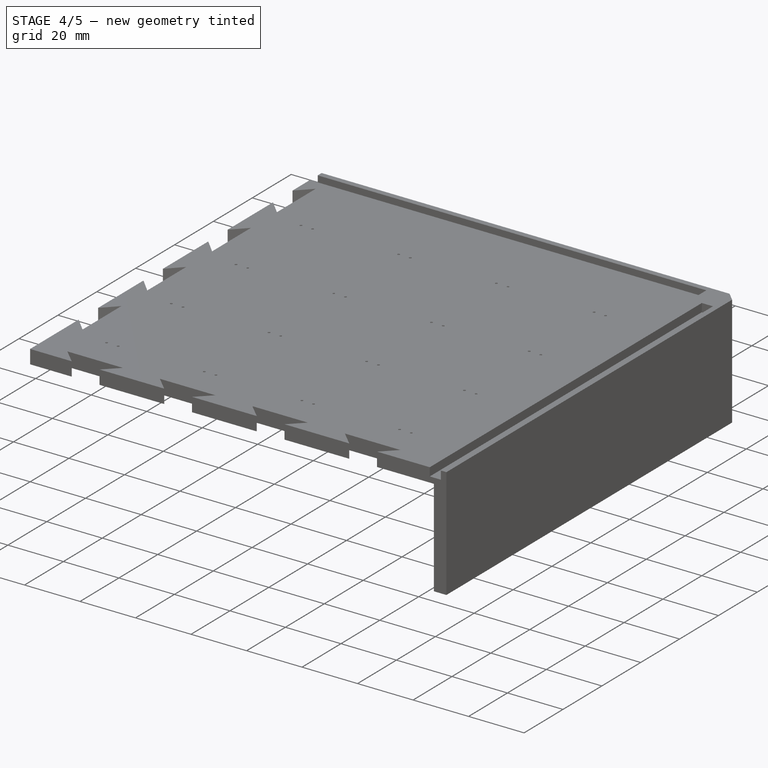
[diagram: stage 4 of 5 — iso view after this stage's code; geometry added in this stage tinted green]
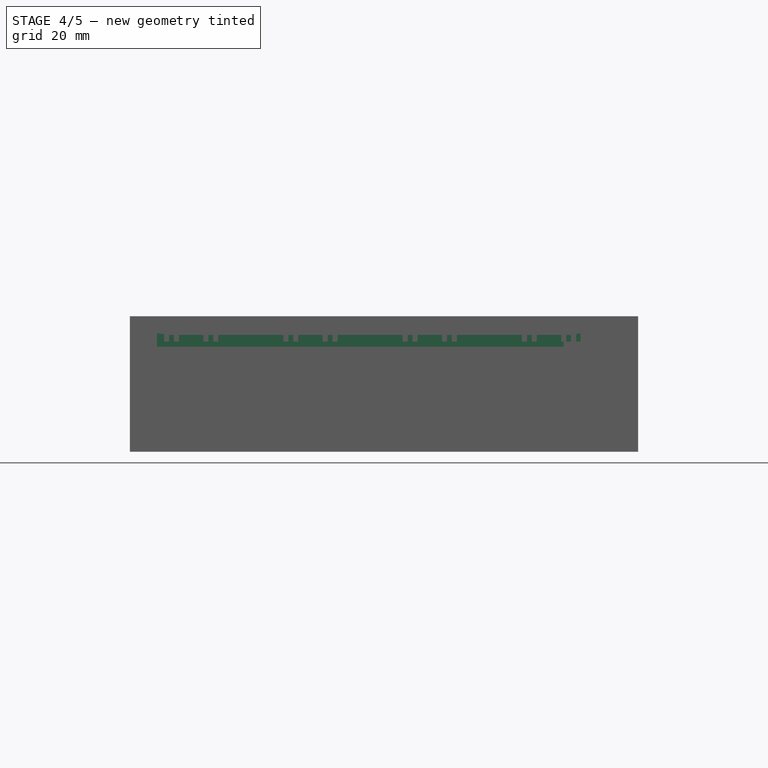
[diagram: stage 4 of 5 — front view after this stage's code; geometry added in this stage tinted green]
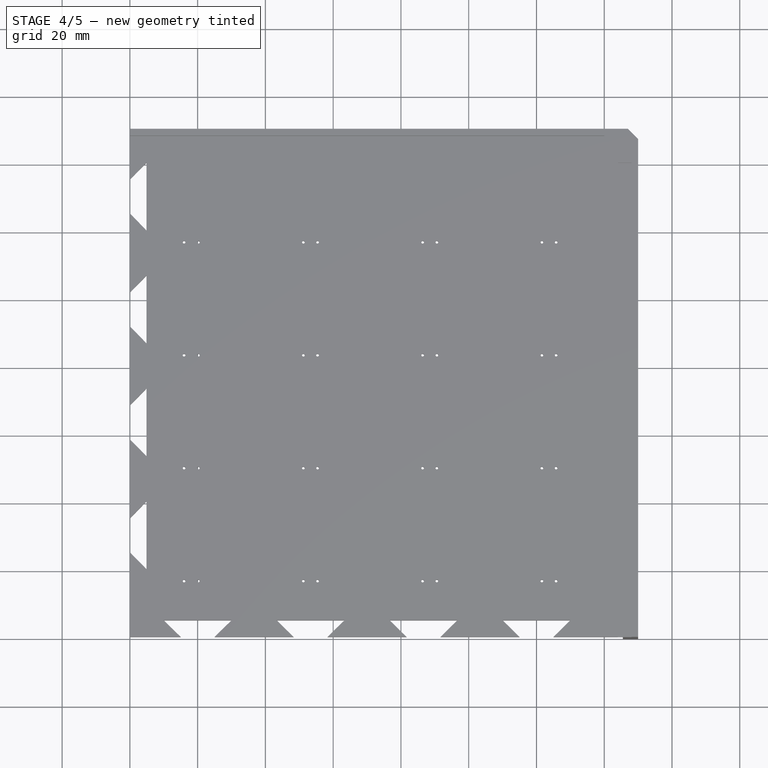
[diagram: stage 4 of 5 — top view after this stage's code; geometry added in this stage tinted green]
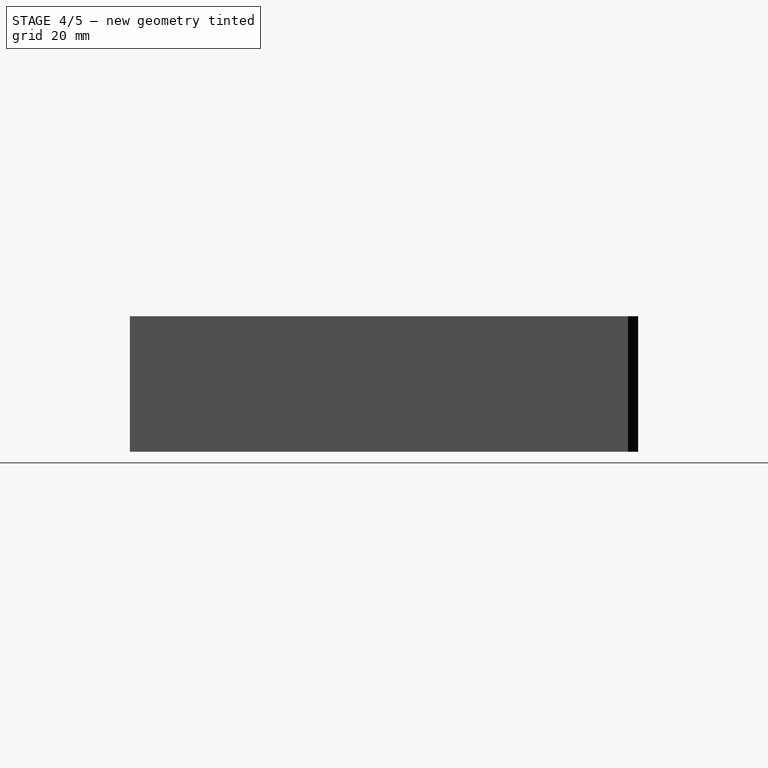
[diagram: stage 4 of 5 — right view after this stage's code; geometry added in this stage tinted green]
FEATURE [PartDesign::LinearPattern] LinearPattern003
  BaseFeature = -> Pad002
  Direction = -> Y_Axis
  Length = 70
  Occurrences = 3
  Originals = -> [Pad002]
FEATURE [Sketcher::SketchObject] Sketch009
  FullyConstrained = true
  MapMode = 5
  Placement = pos=(0,0,0) rot=(1,0,0;3.14159rad)
  Support = -> [LinearPattern003]
  sketch-geometry (11):
    g0: LineSegment StartX=0 StartY=0 StartZ=0 EndX=0 EndY=-120 EndZ=0
    g1: LineSegment StartX=0 StartY=-120 StartZ=0 EndX=8 EndY=-120 EndZ=0
    g2: LineSegment StartX=8 StartY=-120 StartZ=0 EndX=133 EndY=-120 EndZ=0
    g3: LineSegment StartX=133 StartY=-120 StartZ=0 EndX=133 EndY=-122 EndZ=0
    g4: LineSegment StartX=133 StartY=-122 StartZ=0 EndX=8 EndY=-122 EndZ=0
    g5: LineSegment StartX=8 StartY=-122 StartZ=0 EndX=8 EndY=-120 EndZ=0
    g6: LineSegment StartX=8 StartY=-122 StartZ=0 EndX=8 EndY=-123.8 EndZ=0
    g7: LineSegment StartX=8 StartY=-123.8 StartZ=0 EndX=133 EndY=-123.8 EndZ=0
    g8: LineSegment StartX=133 StartY=-123.8 StartZ=0 EndX=133 EndY=-125.8 EndZ=0
    g9: LineSegment StartX=133 StartY=-125.8 StartZ=0 EndX=8 EndY=-125.8 EndZ=0
    g10: LineSegment StartX=8 StartY=-125.8 StartZ=0 EndX=8 EndY=-123.8 EndZ=0
  constraints (31):
    c: Coincident(g0,g-1)
    c: PointOnObject(g0,g-2)
    c: DistanceY(g0,g0) = 120
    c: Coincident(g1,g0)
    c: Horizontal(g1)
    c: DistanceX(g1,g1) = 8
    c: Coincident(g2,g3)
    c: Coincident(g3,g4)
    c: Coincident(g4,g5)
    c: Coincident(g5,g2)
    c: Horizontal(g2)
    c: Horizontal(g4)
    c: Vertical(g3)
    c: Vertical(g5)
    c: Coincident(g2,g1)
    c: DistanceX(g2,g2) = 125
    c: DistanceY(g5,g5) = 2
    c: Coincident(g6,g4)
    c: Vertical(g6)
    c: DistanceY(g6,g6) = 1.8
    c: Coincident(g7,g8)
    c: Coincident(g8,g9)
    c: Coincident(g9,g10)
    c: Coincident(g10,g7)
    c: Horizontal(g7)
    c: Horizontal(g9)
    c: Vertical(g8)
    c: Vertical(g10)
    c: Coincident(g7,g6)
    c: DistanceX(g7,g7) = 125
    c: DistanceY(g10,g10) = 2
FEATURE [PartDesign::Pad] Pad003
  BaseFeature = -> LinearPattern003
  Direction = (1,1,1)
  Length = 2.5
  Length2 = 100
  Profile = -> Sketch009
  Type = 0
FEATURE [Sketcher::SketchObject] Sketch010
  FullyConstrained = true
  MapMode = 5
  Placement = pos=(0,0,-2.5) rot=(1,0,0;3.14159rad)
  Support = -> [Pad003]
  sketch-geometry (41):
    g0: LineSegment StartX=0 StartY=0 StartZ=0 EndX=0 EndY=-120 EndZ=0
    g1: LineSegment StartX=0 StartY=-120 StartZ=0 EndX=11.6 EndY=-120 EndZ=0
    g2: LineSegment StartX=11.6 StartY=-120 StartZ=0 EndX=13.3 EndY=-120 EndZ=0
    g3: LineSegment StartX=13.3 StartY=-120 StartZ=0 EndX=13.3 EndY=-122 EndZ=0
    g4: LineSegment StartX=13.3 StartY=-122 StartZ=0 EndX=11.6 EndY=-122 EndZ=0
    g5: LineSegment StartX=11.6 StartY=-122 StartZ=0 EndX=11.6 EndY=-120 EndZ=0
    g6: LineSegment StartX=13.3 StartY=-120 StartZ=0 EndX=23.2 EndY=-120 EndZ=0
    g7: LineSegment StartX=23.2 StartY=-120 StartZ=0 EndX=24.9 EndY=-120 EndZ=0
    g8: LineSegment StartX=24.9 StartY=-120 StartZ=0 EndX=24.9 EndY=-122 EndZ=0
    g9: LineSegment StartX=24.9 StartY=-122 StartZ=0 EndX=23.2 EndY=-122 EndZ=0
    g10: LineSegment StartX=23.2 StartY=-122 StartZ=0 EndX=23.2 EndY=-120 EndZ=0
    g11: LineSegment StartX=24.9 StartY=-120 StartZ=0 EndX=46.8 EndY=-120 EndZ=0
    g12: LineSegment StartX=46.8 StartY=-120 StartZ=0 EndX=48.5 EndY=-120 EndZ=0
    g13: LineSegment StartX=48.5 StartY=-120 StartZ=0 EndX=48.5 EndY=-122 EndZ=0
    g14: LineSegment StartX=48.5 StartY=-122 StartZ=0 EndX=46.8 EndY=-122 EndZ=0
    g15: LineSegment StartX=46.8 StartY=-122 StartZ=0 EndX=46.8 EndY=-120 EndZ=0
    g16: LineSegment StartX=48.5 StartY=-120 StartZ=0 EndX=58.4 EndY=-120 EndZ=0
    g17: LineSegment StartX=58.4 StartY=-120 StartZ=0 EndX=60.1 EndY=-120 EndZ=0
    g18: LineSegment StartX=60.1 StartY=-120 StartZ=0 EndX=60.1 EndY=-122 EndZ=0
    g19: LineSegment StartX=60.1 StartY=-122 StartZ=0 EndX=58.4 EndY=-122 EndZ=0
    g20: LineSegment StartX=58.4 StartY=-122 StartZ=0 EndX=58.4 EndY=-120 EndZ=0
    g21: LineSegment StartX=60.1 StartY=-120 StartZ=0 EndX=82 EndY=-120 EndZ=0
    g22: LineSegment StartX=82 StartY=-120 StartZ=0 EndX=83.7 EndY=-120 EndZ=0
    g23: LineSegment StartX=83.7 StartY=-120 StartZ=0 EndX=83.7 EndY=-122 EndZ=0
    g24: LineSegment StartX=83.7 StartY=-122 StartZ=0 EndX=82 EndY=-122 EndZ=0
    g25: LineSegment StartX=82 StartY=-122 StartZ=0 EndX=82 EndY=-120 EndZ=0
    g26: LineSegment StartX=83.7 StartY=-120 StartZ=0 EndX=93.6 EndY=-120 EndZ=0
    g27: LineSegment StartX=93.6 StartY=-120 StartZ=0 EndX=95.3 EndY=-120 EndZ=0
    g28: LineSegment StartX=95.3 StartY=-120 StartZ=0 EndX=95.3 EndY=-122 EndZ=0
    g29: LineSegment StartX=95.3 StartY=-122 StartZ=0 EndX=93.6 EndY=-122 EndZ=0
    g30: LineSegment StartX=93.6 StartY=-122 StartZ=0 EndX=93.6 EndY=-120 EndZ=0
    g31: LineSegment StartX=95.3 StartY=-120 StartZ=0 EndX=117.2 EndY=-120 EndZ=0
    g32: LineSegment StartX=117.2 StartY=-120 StartZ=0 EndX=118.9 EndY=-120 EndZ=0
    g33: LineSegment StartX=118.9 StartY=-120 StartZ=0 EndX=118.9 EndY=-122 EndZ=0
    g34: LineSegment StartX=118.9 StartY=-122 StartZ=0 EndX=117.2 EndY=-122 EndZ=0
    g35: LineSegment StartX=117.2 StartY=-122 StartZ=0 EndX=117.2 EndY=-120 EndZ=0
    g36: LineSegment StartX=118.9 StartY=-120 StartZ=0 EndX=128.8 EndY=-120 EndZ=0
    g37: LineSegment StartX=128.8 StartY=-120 StartZ=0 EndX=130.5 EndY=-120 EndZ=0
    g38: LineSegment StartX=130.5 StartY=-120 StartZ=0 EndX=130.5 EndY=-122 EndZ=0
    g39: LineSegment StartX=130.5 StartY=-122 StartZ=0 EndX=128.8 EndY=-122 EndZ=0
    g40: LineSegment StartX=128.8 StartY=-122 StartZ=0 EndX=128.8 EndY=-120 EndZ=0
  constraints (115):
    c: Coincident(g0,g-1)
    c: PointOnObject(g0,g-2)
    c: DistanceY(g0,g0) = 120
    c: Coincident(g1,g0)
    c: Horizontal(g1)
    c: DistanceX(g1,g1) = 11.6
    c: Coincident(g2,g3)
    c: Coincident(g3,g4)
    c: Coincident(g4,g5)
    c: Coincident(g5,g2)
    c: Horizontal(g2)
    c: Horizontal(g4)
    c: Vertical(g3)
    c: Vertical(g5)
    c: Coincident(g2,g1)
    c: DistanceX(g2,g2) = 1.7
    c: DistanceY(g5,g5) = 2
    c: Coincident(g6,g2)
    c: Horizontal(g6)
    c: DistanceX(g6,g6) = 9.9
    c: Coincident(g7,g8)
    c: Coincident(g8,g9)
    c: Coincident(g9,g10)
    c: Coincident(g10,g7)
    c: Horizontal(g7)
    c: Horizontal(g9)
    c: Vertical(g8)
    c: Vertical(g10)
    c: Coincident(g7,g6)
    c: DistanceX(g7,g7) = 1.7
    c: DistanceY(g8,g8) = 2
    c: Coincident(g11,g7)
    c: Horizontal(g11)
    c: DistanceX(g11,g11) = 21.9
    c: Coincident(g12,g13)
    c: Coincident(g13,g14)
    c: Coincident(g14,g15)
    c: Coincident(g15,g12)
    c: Horizontal(g12)
    c: Horizontal(g14)
    c: Vertical(g13)
    c: Vertical(g15)
    c: Coincident(g12,g11)
    c: DistanceX(g12,g12) = 1.7
    c: DistanceY(g13,g13) = 2
    c: Coincident(g16,g12)
    c: Horizontal(g16)
    c: DistanceX(g16,g16) = 9.9
    c: Coincident(g17,g18)
    c: Coincident(g18,g19)
    c: Coincident(g19,g20)
    c: Coincident(g20,g17)
    c: Horizontal(g17)
    c: Horizontal(g19)
    c: Vertical(g18)
    c: Vertical(g20)
    c: Coincident(g17,g16)
    c: DistanceX(g17,g17) = 1.7
    c: DistanceY(g18,g18) = 2
    c: Coincident(g21,g17)
    c: Horizontal(g21)
    c: DistanceX(g21,g21) = 21.9
    c: Coincident(g22,g23)
    c: Coincident(g23,g24)
    c: Coincident(g24,g25)
    c: Coincident(g25,g22)
    c: Horizontal(g22)
    c: Horizontal(g24)
    c: Vertical(g23)
    c: Vertical(g25)
    c: Coincident(g22,g21)
    c: DistanceX(g22,g22) = 1.7
    c: DistanceY(g25,g25) = 2
    c: Coincident(g26,g22)
    c: Horizontal(g26)
    c: DistanceX(g26,g26) = 9.9
    c: Coincident(g27,g28)
    c: Coincident(g28,g29)
    c: Coincident(g29,g30)
    c: Coincident(g30,g27)
    c: Horizontal(g27)
    c: Horizontal(g29)
    c: Vertical(g28)
    c: Vertical(g30)
    c: Coincident(g27,g26)
    c: DistanceX(g27,g27) = 1.7
    c: DistanceY(g30,g30) = 2
    c: Coincident(g31,g27)
    c: Horizontal(g31)
    c: DistanceX(g31,g31) = 21.9
    c: Coincident(g32,g33)
    c: Coincident(g33,g34)
    c: Coincident(g34,g35)
    c: Coincident(g35,g32)
    c: Horizontal(g32)
    c: Horizontal(g34)
    c: Vertical(g33)
    c: Vertical(g35)
    c: Coincident(g32,g31)
    c: DistanceX(g32,g32) = 1.7
    c: DistanceY(g35,g35) = 2
    c: Coincident(g36,g32)
    c: Horizontal(g36)
    c: DistanceX(g36,g36) = 9.9
    c: Coincident(g37,g38)
    c: Coincident(g38,g39)
    c: Coincident(g39,g40)
    c: Coincident(g40,g37)
    c: Horizontal(g37)
    c: Horizontal(g39)
    c: Vertical(g38)
    c: Vertical(g40)
    c: Coincident(g37,g36)
    c: DistanceX(g37,g37) = 1.7
    c: DistanceY(g38,g38) = 2
FEATURE [PartDesign::Pocket] Pocket005
  BaseFeature = -> Pad003
  Length = 2
  Length2 = 100
  Profile = -> Sketch010
  Type = 0
FEATURE [Sketcher::SketchObject] Sketch011
  FullyConstrained = true
  MapMode = 5
  Placement = pos=(0,0,0) rot=(1,0,0;3.14159rad)
  Support = -> [Pocket005]
  sketch-geometry (11):
    g0: LineSegment StartX=0 StartY=0 StartZ=0 EndX=0 EndY=-128 EndZ=0
    g1: LineSegment StartX=0 StartY=-128 StartZ=0 EndX=8 EndY=-128 EndZ=0
    g2: LineSegment StartX=8 StartY=-128 StartZ=0 EndX=108 EndY=-128 EndZ=0
    g3: LineSegment StartX=108 StartY=-128 StartZ=0 EndX=108 EndY=-130.5 EndZ=0
    g4: LineSegment StartX=108 StartY=-130.5 StartZ=0 EndX=8 EndY=-130.5 EndZ=0
    g5: LineSegment StartX=8 StartY=-130.5 StartZ=0 EndX=8 EndY=-128 EndZ=0
    g6: LineSegment StartX=8 StartY=-130.5 StartZ=0 EndX=8 EndY=-136.5 EndZ=0
    g7: LineSegment StartX=8 StartY=-136.5 StartZ=0 EndX=128 EndY=-136.5 EndZ=0
    g8: LineSegment StartX=128 StartY=-136.5 StartZ=0 EndX=128 EndY=-139 EndZ=0
    g9: LineSegment StartX=128 StartY=-139 StartZ=0 EndX=8 EndY=-139 EndZ=0
    g10: LineSegment StartX=8 StartY=-139 StartZ=0 EndX=8 EndY=-136.5 EndZ=0
  constraints (31):
    c: Coincident(g0,g-1)
    c: PointOnObject(g0,g-2)
    c: DistanceY(g0,g0) = 128
    c: Coincident(g1,g0)
    c: Horizontal(g1)
    c: DistanceX(g1,g1) = 8
    c: Coincident(g2,g3)
    c: Coincident(g3,g4)
    c: Coincident(g4,g5)
    c: Coincident(g5,g2)
    c: Horizontal(g2)
    c: Horizontal(g4)
    c: Vertical(g3)
    c: Vertical(g5)
    c: Coincident(g2,g1)
    c: DistanceX(g2,g2) = 100
    c: DistanceY(g5,g5) = 2.5
    c: Coincident(g6,g4)
    c: Vertical(g6)
    c: Coincident(g7,g8)
    c: Coincident(g8,g9)
    c: Coincident(g9,g10)
    c: Coincident(g10,g7)
    c: Horizontal(g7)
    c: Horizontal(g9)
    c: Vertical(g8)
    c: Vertical(g10)
    c: Coincident(g7,g6)
    c: DistanceY(g6,g6) = 6
    c: DistanceY(g10,g10) = 2.5
    c: DistanceX(g7,g7) = 120
FEATURE [PartDesign::Pad] Pad004
  BaseFeature = -> Pocket005
  Direction = (1,1,1)
  Length = 4
  Length2 = 100
  Profile = -> Sketch011
  Type = 0
FEATURE [Sketcher::SketchObject] Sketch012
  FullyConstrained = true
  MapMode = 5
  Placement = pos=(0,0,-2.5) rot=(1,0,0;3.14159rad)
  Support = -> [Pad004]
  sketch-geometry (6):
    g0: LineSegment StartX=0 StartY=0 StartZ=0 EndX=0 EndY=-125.8 EndZ=0
    g1: LineSegment StartX=0 StartY=-125.8 StartZ=0 EndX=110 EndY=-125.8 EndZ=0
    g2: LineSegment StartX=110 StartY=-125.8 StartZ=0 EndX=120 EndY=-125.8 EndZ=0
    g3: LineSegment StartX=120 StartY=-125.8 StartZ=0 EndX=120 EndY=-123.8 EndZ=0
    g4: LineSegment StartX=120 StartY=-123.8 StartZ=0 EndX=110 EndY=-123.8 EndZ=0
    g5: LineSegment StartX=110 StartY=-123.8 StartZ=0 EndX=110 EndY=-125.8 EndZ=0
  constraints (17):
    c: Coincident(g0,g-1)
    c: PointOnObject(g0,g-2)
    c: DistanceY(g0,g0) = 125.8
    c: Coincident(g1,g0)
    c: Horizontal(g1)
    c: DistanceX(g1,g1) = 110
    c: Coincident(g2,g3)
    c: Coincident(g3,g4)
    c: Coincident(g4,g5)
    c: Coincident(g5,g2)
    c: Horizontal(g2)
    c: Horizontal(g4)
    c: Vertical(g3)
    c: Vertical(g5)
    c: Coincident(g2,g1)
    c: DistanceX(g4,g4) = 10
    c: DistanceY(g3,g3) = 2
FEATURE [PartDesign::Pocket] Pocket006
  BaseFeature = -> Pad004
  Length = 2.5
  Length2 = 100
  Profile = -> Sketch012
  Type = 0
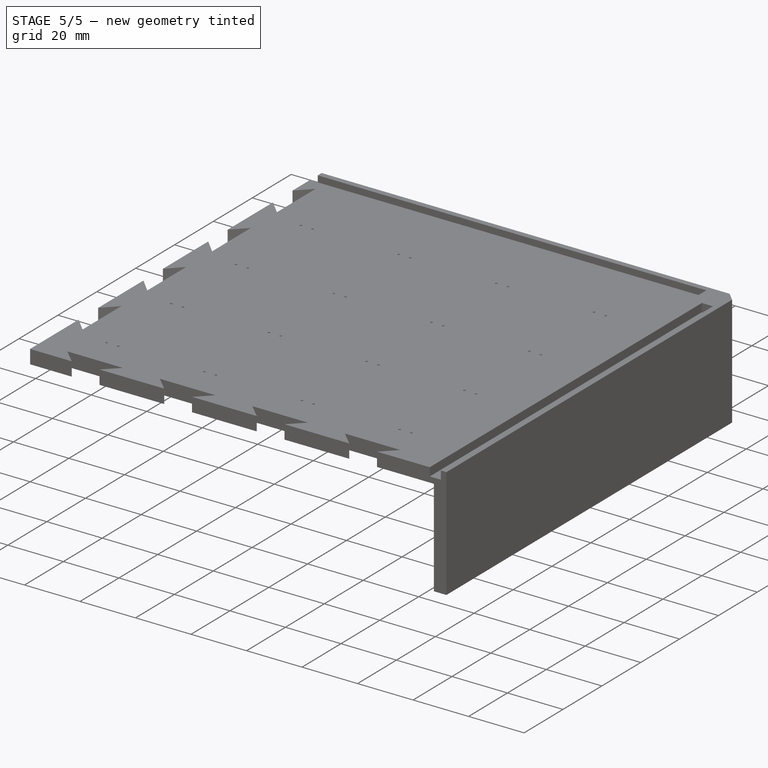
[diagram: stage 5 of 5 — iso view after this stage's code; geometry added in this stage tinted green]
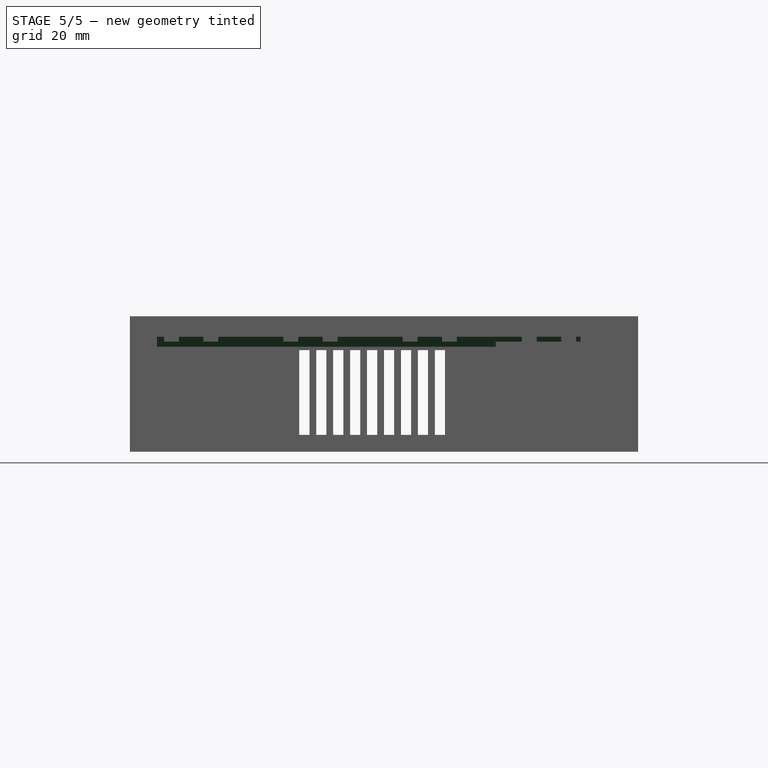
[diagram: stage 5 of 5 — front view after this stage's code; geometry added in this stage tinted green]
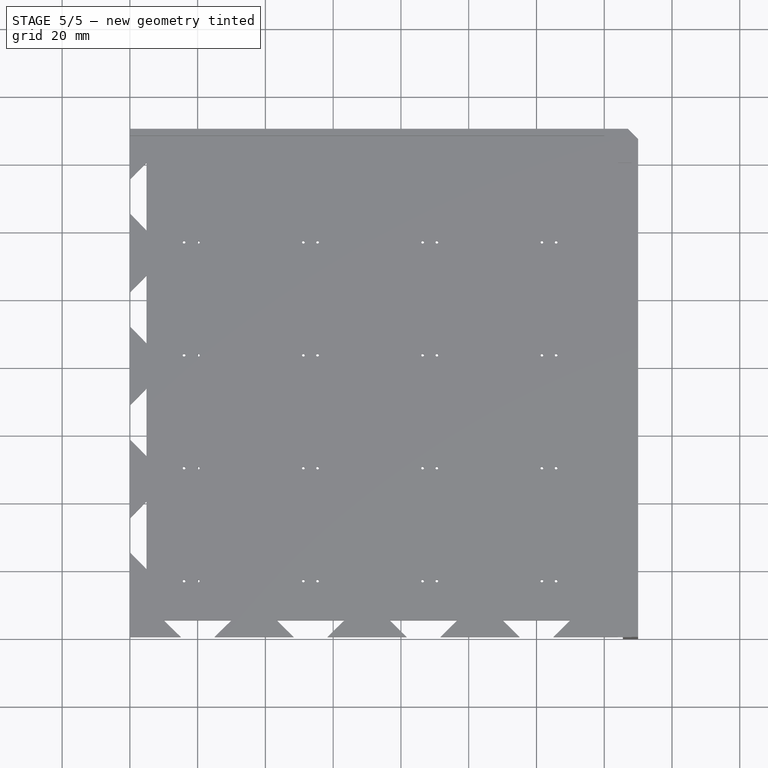
[diagram: stage 5 of 5 — top view after this stage's code; geometry added in this stage tinted green]
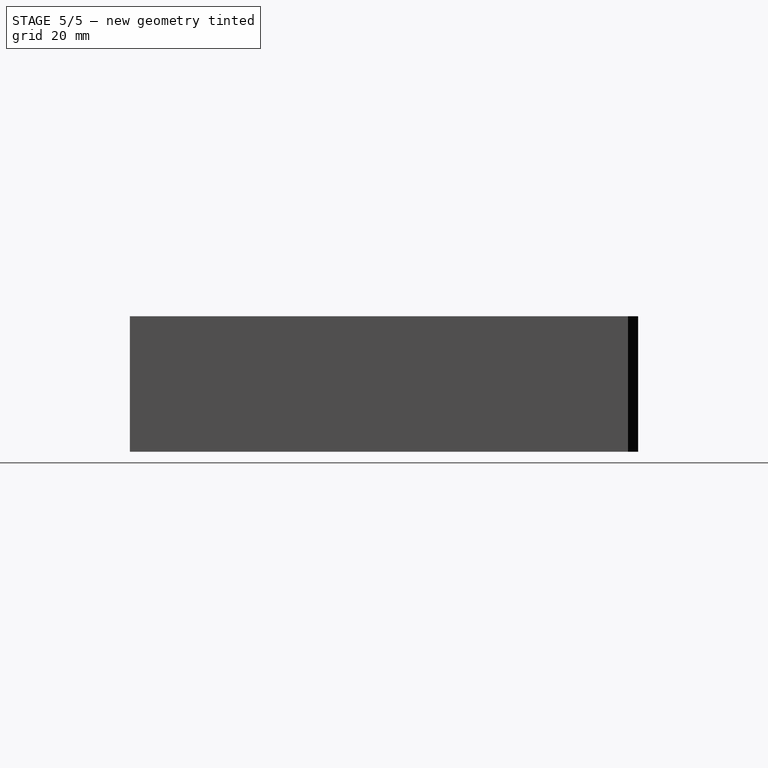
[diagram: stage 5 of 5 — right view after this stage's code; geometry added in this stage tinted green]
FEATURE [PartDesign::Chamfer] Chamfer001
  Angle = 45
  Base = -> Pocket006 [Edge905,Edge901,Edge897,Edge893,Edge889,Edge885,Edge881,Edge877,Edge873,Edge957,Edge958]
  BaseFeature = -> Pocket006
  ChamferType = 0
  FlipDirection = false
  Size = 1.45
  Size2 = 1
  SupportTransform = false
FEATURE [PartDesign::Chamfer] Chamfer002
  Angle = 45
  Base = -> Chamfer001 [Edge884,Edge872]
  BaseFeature = -> Chamfer001
  ChamferType = 0
  FlipDirection = false
  Size = 2.45
  Size2 = 1
  SupportTransform = false
FEATURE [Sketcher::SketchObject] Sketch013
  FullyConstrained = true
  MapMode = 5
  Placement = pos=(0,150,0) rot=(0,0.707107,0.707107;3.14159rad)
  Support = -> [Chamfer002]
  sketch-geometry (6):
    g0: LineSegment StartX=0 StartY=0 StartZ=0 EndX=-50 EndY=0 EndZ=0
    g1: LineSegment StartX=-50 StartY=0 StartZ=0 EndX=-50 EndY=-5 EndZ=0
    g2: LineSegment StartX=-50 StartY=-5 StartZ=0 EndX=-53 EndY=-5 EndZ=0
    g3: LineSegment StartX=-53 StartY=-5 StartZ=0 EndX=-53 EndY=-30 EndZ=0
    g4: LineSegment StartX=-53 StartY=-30 StartZ=0 EndX=-50 EndY=-30 EndZ=0
    g5: LineSegment StartX=-50 StartY=-30 StartZ=0 EndX=-50 EndY=-5 EndZ=0
  constraints (17):
    c: Coincident(g0,g-1)
    c: PointOnObject(g0,g-1)
    c: DistanceX(g0,g0) = 50
    c: Coincident(g1,g0)
    c: Vertical(g1)
    c: DistanceY(g1,g1) = 5
    c: Coincident(g2,g3)
    c: Coincident(g3,g4)
    c: Coincident(g4,g5)
    c: Coincident(g5,g2)
    c: Horizontal(g2)
    c: Horizontal(g4)
    c: Vertical(g3)
    c: Vertical(g5)
    c: Coincident(g2,g1)
    c: DistanceX(g4,g4) = 3
    c: DistanceY(g5,g5) = 25
FEATURE [PartDesign::Pocket] Pocket007
  BaseFeature = -> Chamfer002
  Length = 4.5
  Length2 = 100
  Profile = -> Sketch013
  Type = 0
FEATURE [PartDesign::LinearPattern] LinearPattern004
  BaseFeature = -> Pocket007
  Direction = -> X_Axis
  Length = 40
  Occurrences = 9
  Originals = -> [Pocket007]
FEATURE [PartDesign::Body] Body
  Group = -> [Sketch,Pad,Sketch001,Pocket,LinearPattern,Sketch002,Pocket001,LinearPattern001,Sketch003,Pad001,Sketch004,Hole,LinearPattern002,Chamfer,Sketch005,Pocket002,Sketch006,Pocket003,Sketch007,Pocket004,Sketch008,Pad002,LinearPattern003,Sketch009,Pad003,Sketch010,Pocket005,Sketch011,Pad004,Sketch012,Pocket006,Chamfer001,Chamfer002,Sketch013,Pocket007,LinearPattern004]
  Origin = -> Origin
  Tip = -> LinearPattern004
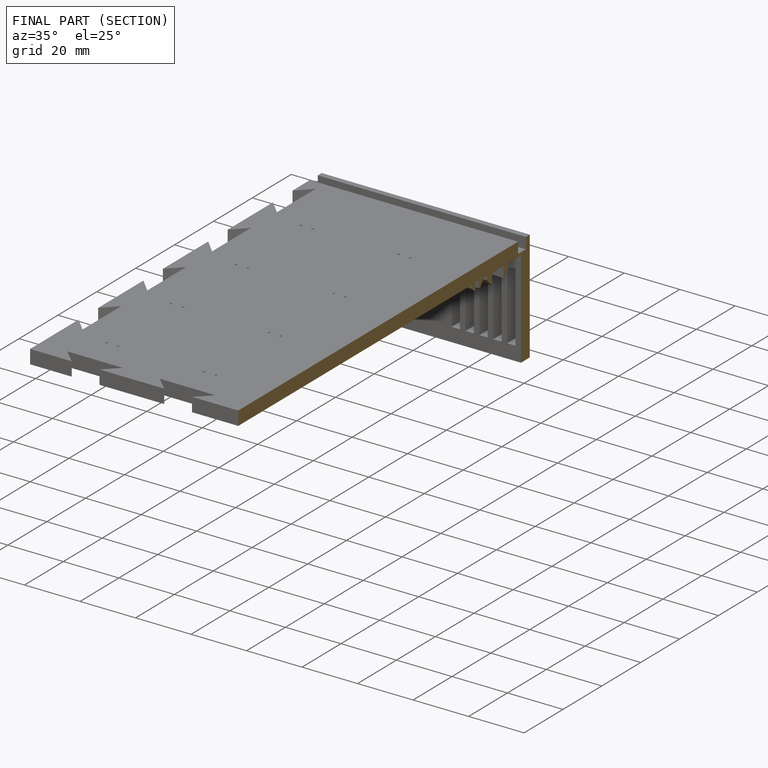
[diagram: finished part — half-section view (interior)]
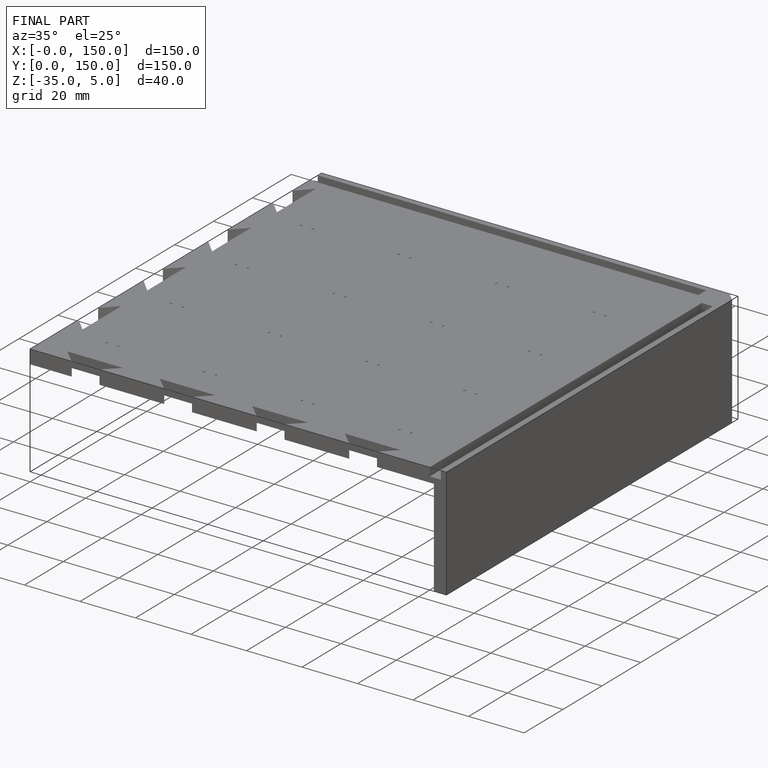
[diagram: finished part — iso view with bounding-box wireframe]
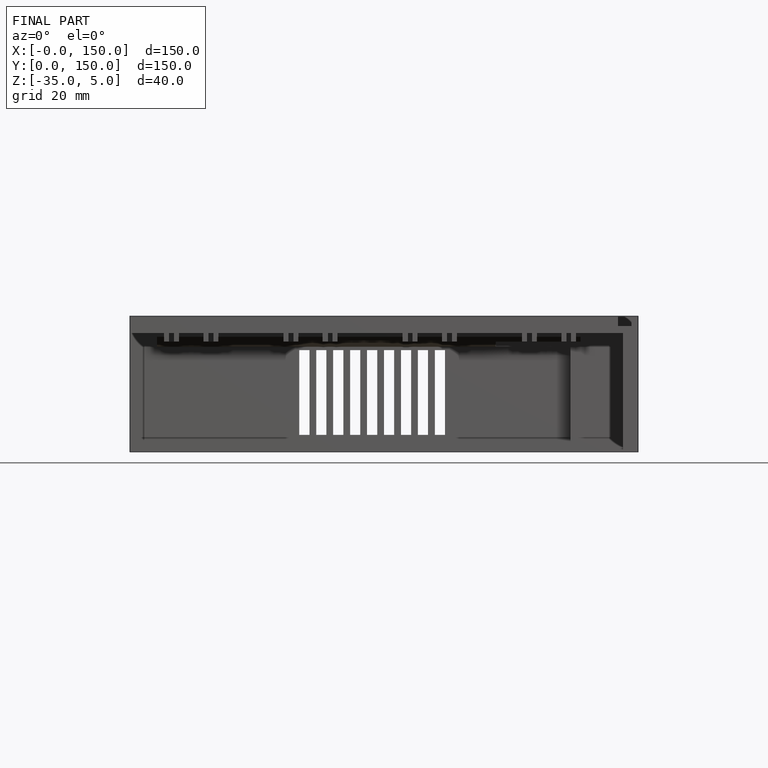
[diagram: finished part — front view with bounding-box wireframe]
